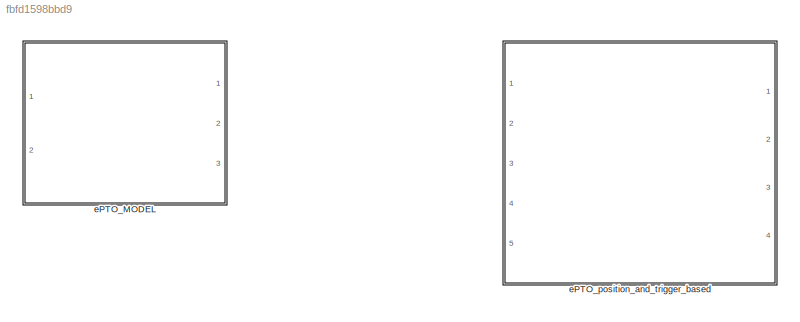
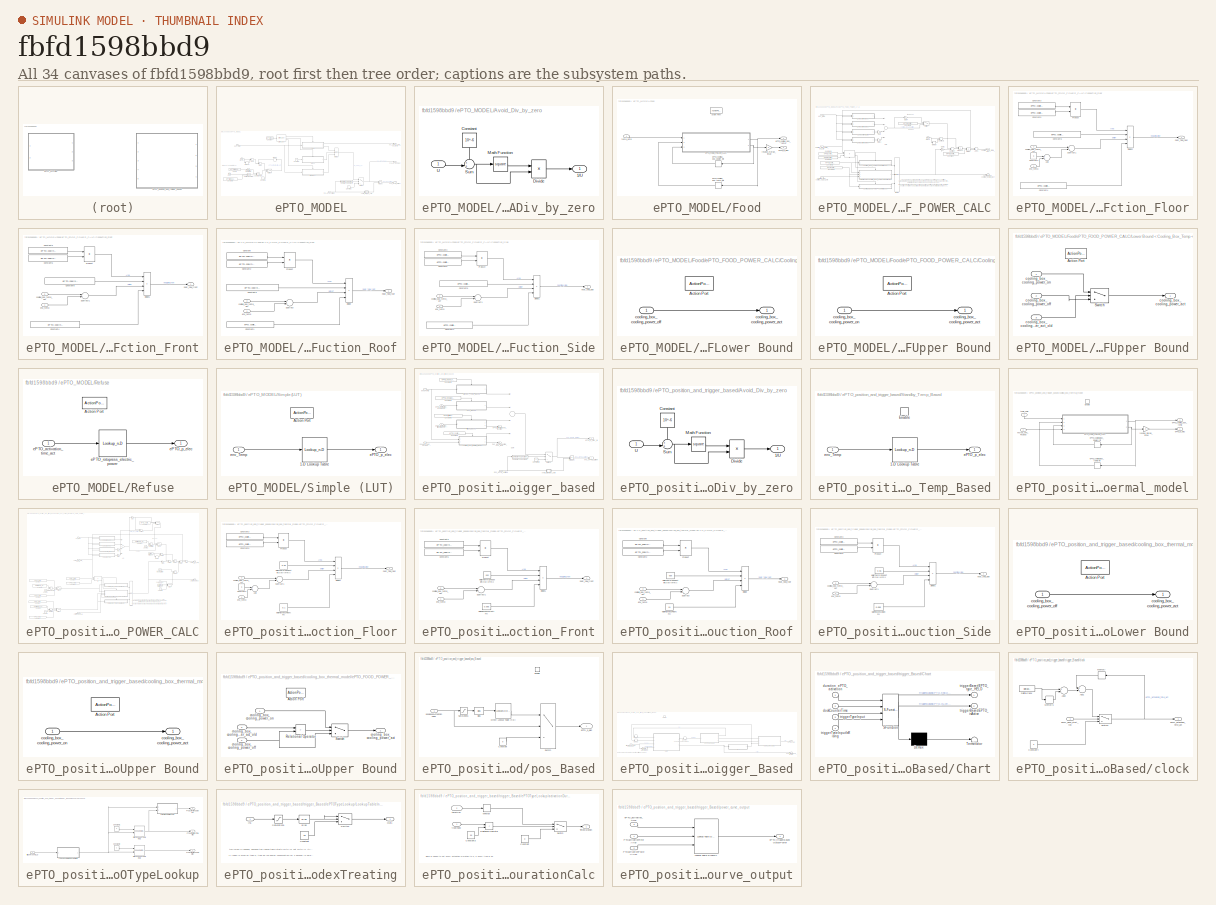
[diagram: thumbnail index - all 34 canvases of the model, root first then tree order]
MODEL slx_fbfd1598bbd9
KIND library
CONFIG AbsTol = auto
CONFIG FixedStep = auto
CONFIG MaxStep = auto
CONFIG MinStep = auto
CONFIG RelTol = 1e-3
CONFIG SampleTimeConstraint = Unconstrained
CONFIG Solver = ode45
CONFIG SolverMode = Auto
CONFIG SolverName = ode45
CONFIG StartTime = 0.0
CONFIG StopTime = 10.0
BLOCK [SubSystem] ePTO_MODEL
  Ports = [2, 3]
  RequestExecContextInheritance = off
  Variant = off
BLOCK [Sum] ePTO_MODEL/Add1
  Commented = on
  InputSameDT = off
  OutDataTypeStr = Inherit: Inherit via internal rule
  Ports = [2, 1]
  SaturateOnIntegerOverflow = off
BLOCK [Sum] ePTO_MODEL/Add2
  Commented = on
  InputSameDT = off
  Inputs = +-
  OutDataTypeStr = Inherit: Inherit via internal rule
  Ports = [2, 1]
  SaturateOnIntegerOverflow = off
BLOCK [SubSystem] ePTO_MODEL/Avoid_Div_by_zero
  Ports = [1, 1]
  RequestExecContextInheritance = off
  Variant = off
BLOCK [Outport] ePTO_MODEL/Avoid_Div_by_zero/1//U
  IconDisplay = Port number
BLOCK [Constant] ePTO_MODEL/Avoid_Div_by_zero/Constant
  Value = 10^-6
BLOCK [Product] ePTO_MODEL/Avoid_Div_by_zero/Divide
  InputSameDT = off
  Inputs = /*
  OutDataTypeStr = Inherit: Inherit via internal rule
  Ports = [2, 1]
  RndMeth = Floor
  SaturateOnIntegerOverflow = off
BLOCK [Math] ePTO_MODEL/Avoid_Div_by_zero/Math Function
  Operator = square
  Ports = [1, 1]
BLOCK [Sum] ePTO_MODEL/Avoid_Div_by_zero/Sum
  IconShape = round
  InputSameDT = off
  Inputs = ++|
  OutDataTypeStr = Inherit: Inherit via internal rule
  Ports = [2, 1]
  SaturateOnIntegerOverflow = off
BLOCK [Inport] ePTO_MODEL/Avoid_Div_by_zero/U
  IconDisplay = Port number
BLOCK [Clock] ePTO_MODEL/Clock
  Commented = on
BLOCK [Clock] ePTO_MODEL/Clock1
  Commented = on
BLOCK [Reference] ePTO_MODEL/Compare To Constant1  REF=simulink/Logic and Bit
Operations/Compare
To Constant
  Ports = [1, 1]
  SourceBlock = simulink/Logic and Bit\nOperations/Compare\nTo Constant
  SourceType = Compare To Constant
BLOCK [Reference] ePTO_MODEL/Compare To Constant2  REF=simulink/Logic and Bit
Operations/Compare
To Constant
  Commented = on
  Ports = [1, 1]
  SourceBlock = simulink/Logic and Bit\nOperations/Compare\nTo Constant
  SourceType = Compare To Constant
BLOCK [Constant] ePTO_MODEL/Constant
  Value = ePTO.type
BLOCK [Constant] ePTO_MODEL/Constant1
  Value = 0
BLOCK [Constant] ePTO_MODEL/Constant2
  Value = 0
BLOCK [Constant] ePTO_MODEL/Constant3
  Commented = on
  Value = ePTO.refuse.activation_delay
BLOCK [Constant] ePTO_MODEL/Constant4
  Commented = on
  Value = 0
BLOCK [SubSystem] ePTO_MODEL/Food
  Ports = [1, 2, 0, 0, 0, 0, 0, 1]
  RequestExecContextInheritance = off
  TreatAsAtomicUnit = on
  Variant = off
BLOCK [ActionPort] ePTO_MODEL/Food/Action Port
  ActionType = case
BLOCK [Memory] ePTO_MODEL/Food/ePTO.cooling_box.power_init
BLOCK [Memory] ePTO_MODEL/Food/ePTO.cooling_box.temp_init
  X0 = ePTO.cooling_box.temp_init
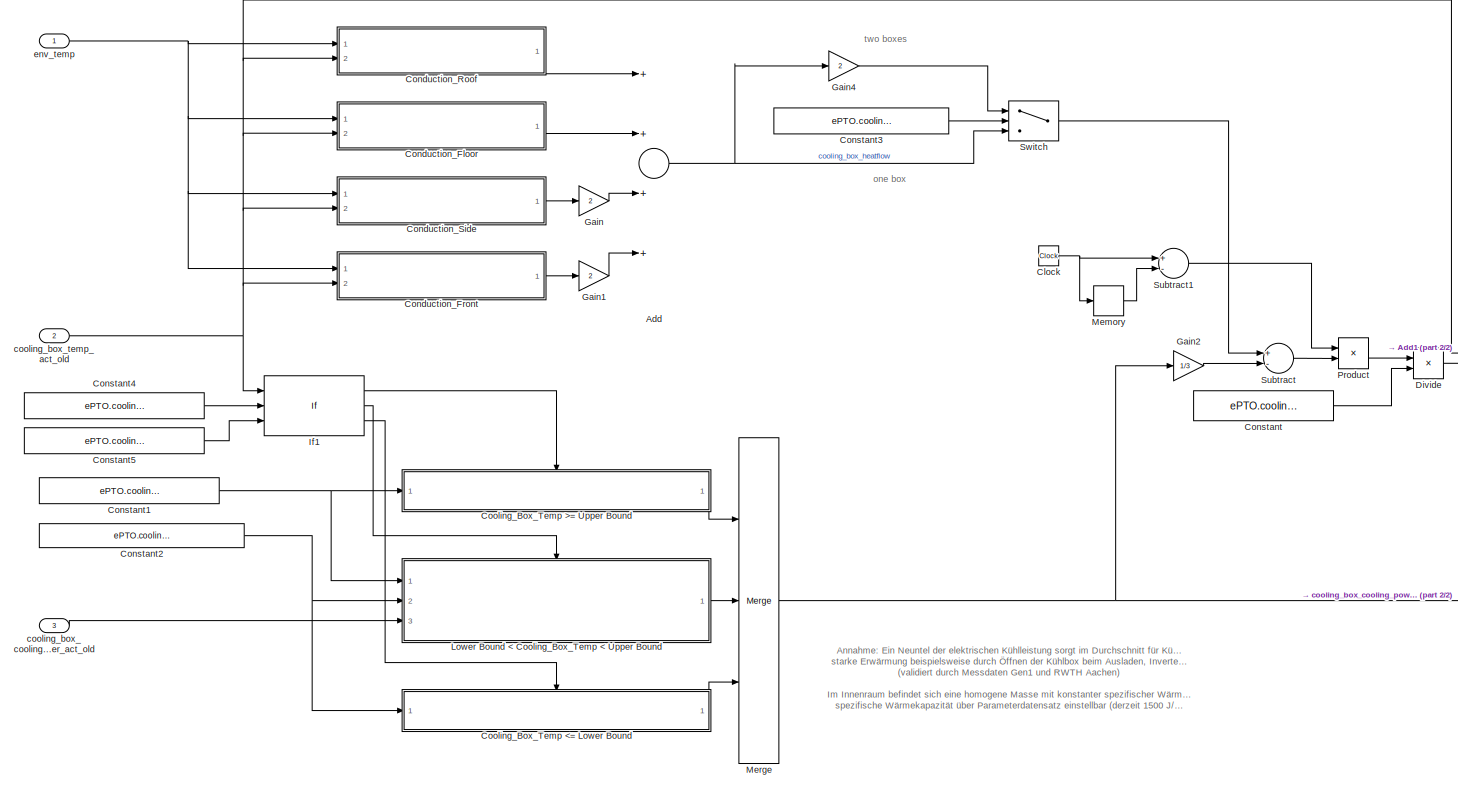
[diagram: ePTO_MODEL/Food/ePTO_FOOD_POWER_CALC - part 1/2, most of the canvas]
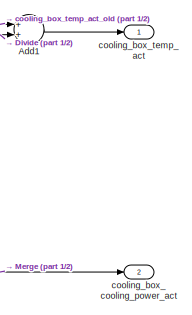
[diagram: ePTO_MODEL/Food/ePTO_FOOD_POWER_CALC - part 2/2, middle right region]
BLOCK [SubSystem] ePTO_MODEL/Food/ePTO_FOOD_POWER_CALC
  Ports = [3, 2]
  RequestExecContextInheritance = off
  Variant = off
BLOCK [Sum] ePTO_MODEL/Food/ePTO_FOOD_POWER_CALC/Add
  InputSameDT = off
  Inputs = ++++
  OutDataTypeStr = Inherit: Inherit via internal rule
  Ports = [4, 1]
  SaturateOnIntegerOverflow = off
BLOCK [Sum] ePTO_MODEL/Food/ePTO_FOOD_POWER_CALC/Add1
  InputSameDT = off
  OutDataTypeStr = Inherit: Inherit via internal rule
  Ports = [2, 1]
  SaturateOnIntegerOverflow = off
BLOCK [Clock] ePTO_MODEL/Food/ePTO_FOOD_POWER_CALC/Clock
BLOCK [SubSystem] ePTO_MODEL/Food/ePTO_FOOD_POWER_CALC/Conduction_Floor
  Ports = [2, 1]
  RequestExecContextInheritance = off
  Variant = off
BLOCK [Sum] ePTO_MODEL/Food/ePTO_FOOD_POWER_CALC/Conduction_Floor/Add
  InputSameDT = off
  OutDataTypeStr = Inherit: Inherit via internal rule
  Ports = [2, 1]
  SaturateOnIntegerOverflow = off
BLOCK [Constant] ePTO_MODEL/Food/ePTO_FOOD_POWER_CALC/Conduction_Floor/Constant2
  Value = 5
BLOCK [Constant] ePTO_MODEL/Food/ePTO_FOOD_POWER_CALC/Conduction_Floor/Constant3
  Value = ePTO.cooling_box.length
BLOCK [Constant] ePTO_MODEL/Food/ePTO_FOOD_POWER_CALC/Conduction_Floor/Constant4
  Value = ePTO.cooling_box.wall_thickness_floor
BLOCK [Constant] ePTO_MODEL/Food/ePTO_FOOD_POWER_CALC/Conduction_Floor/Constant5
  Value = ePTO.cooling_box.width
BLOCK [Constant] ePTO_MODEL/Food/ePTO_FOOD_POWER_CALC/Conduction_Floor/Constant6
  Value = ePTO.cooling_box.walls_thermal_conductivity
BLOCK [Product] ePTO_MODEL/Food/ePTO_FOOD_POWER_CALC/Conduction_Floor/Divide1
  InputSameDT = off
  Inputs = ***/
  OutDataTypeStr = Inherit: Inherit via internal rule
  Ports = [4, 1]
  RndMeth = Floor
  SaturateOnIntegerOverflow = off
BLOCK [Product] ePTO_MODEL/Food/ePTO_FOOD_POWER_CALC/Conduction_Floor/Product
  InputSameDT = off
  OutDataTypeStr = Inherit: Inherit via internal rule
  Ports = [2, 1]
  RndMeth = Floor
  SaturateOnIntegerOverflow = off
BLOCK [Sum] ePTO_MODEL/Food/ePTO_FOOD_POWER_CALC/Conduction_Floor/Subtract1
  InputSameDT = off
  Inputs = -+
  OutDataTypeStr = Inherit: Inherit via internal rule
  Ports = [2, 1]
  SaturateOnIntegerOverflow = off
BLOCK [Inport] ePTO_MODEL/Food/ePTO_FOOD_POWER_CALC/Conduction_Floor/cooling_box_temp_act
  IconDisplay = Port number
  Port = 2
BLOCK [Inport] ePTO_MODEL/Food/ePTO_FOOD_POWER_CALC/Conduction_Floor/env_temp
  IconDisplay = Port number
BLOCK [Outport] ePTO_MODEL/Food/ePTO_FOOD_POWER_CALC/Conduction_Floor/heat_flow_floor
  IconDisplay = Port number
BLOCK [SubSystem] ePTO_MODEL/Food/ePTO_FOOD_POWER_CALC/Conduction_Front
  Ports = [2, 1]
  RequestExecContextInheritance = off
  Variant = off
BLOCK [Constant] ePTO_MODEL/Food/ePTO_FOOD_POWER_CALC/Conduction_Front/Constant3
  Value = ePTO.cooling_box.width
BLOCK [Constant] ePTO_MODEL/Food/ePTO_FOOD_POWER_CALC/Conduction_Front/Constant4
  Value = ePTO.cooling_box.wall_thickness_front
BLOCK [Constant] ePTO_MODEL/Food/ePTO_FOOD_POWER_CALC/Conduction_Front/Constant5
  Value = ePTO.cooling_box.height
BLOCK [Constant] ePTO_MODEL/Food/ePTO_FOOD_POWER_CALC/Conduction_Front/Constant6
  Value = ePTO.cooling_box.walls_thermal_conductivity
BLOCK [Product] ePTO_MODEL/Food/ePTO_FOOD_POWER_CALC/Conduction_Front/Divide1
  InputSameDT = off
  Inputs = ***/
  OutDataTypeStr = Inherit: Inherit via internal rule
  Ports = [4, 1]
  RndMeth = Floor
  SaturateOnIntegerOverflow = off
BLOCK [Product] ePTO_MODEL/Food/ePTO_FOOD_POWER_CALC/Conduction_Front/Product
  InputSameDT = off
  OutDataTypeStr = Inherit: Inherit via internal rule
  Ports = [2, 1]
  RndMeth = Floor
  SaturateOnIntegerOverflow = off
BLOCK [Sum] ePTO_MODEL/Food/ePTO_FOOD_POWER_CALC/Conduction_Front/Subtract1
  InputSameDT = off
  Inputs = -+
  OutDataTypeStr = Inherit: Inherit via internal rule
  Ports = [2, 1]
  SaturateOnIntegerOverflow = off
BLOCK [Inport] ePTO_MODEL/Food/ePTO_FOOD_POWER_CALC/Conduction_Front/cooling_box_temp_act
  IconDisplay = Port number
  Port = 2
BLOCK [Inport] ePTO_MODEL/Food/ePTO_FOOD_POWER_CALC/Conduction_Front/env_temp
  IconDisplay = Port number
BLOCK [Outport] ePTO_MODEL/Food/ePTO_FOOD_POWER_CALC/Conduction_Front/heat_flow_front
  IconDisplay = Port number
BLOCK [SubSystem] ePTO_MODEL/Food/ePTO_FOOD_POWER_CALC/Conduction_Roof
  Ports = [2, 1]
  RequestExecContextInheritance = off
  Variant = off
BLOCK [Constant] ePTO_MODEL/Food/ePTO_FOOD_POWER_CALC/Conduction_Roof/Constant
  Value = ePTO.cooling_box.length
BLOCK [Constant] ePTO_MODEL/Food/ePTO_FOOD_POWER_CALC/Conduction_Roof/Constant1
  Value = ePTO.cooling_box.wall_thickness_roof
BLOCK [Constant] ePTO_MODEL/Food/ePTO_FOOD_POWER_CALC/Conduction_Roof/Constant2
  Value = ePTO.cooling_box.width
BLOCK [Constant] ePTO_MODEL/Food/ePTO_FOOD_POWER_CALC/Conduction_Roof/Constant3
  Value = ePTO.cooling_box.walls_thermal_conductivity
BLOCK [Product] ePTO_MODEL/Food/ePTO_FOOD_POWER_CALC/Conduction_Roof/Divide
  InputSameDT = off
  Inputs = ***/
  OutDataTypeStr = Inherit: Inherit via internal rule
  Ports = [4, 1]
  RndMeth = Floor
  SaturateOnIntegerOverflow = off
BLOCK [Product] ePTO_MODEL/Food/ePTO_FOOD_POWER_CALC/Conduction_Roof/Product
  InputSameDT = off
  OutDataTypeStr = Inherit: Inherit via internal rule
  Ports = [2, 1]
  RndMeth = Floor
  SaturateOnIntegerOverflow = off
BLOCK [Sum] ePTO_MODEL/Food/ePTO_FOOD_POWER_CALC/Conduction_Roof/Subtract
  InputSameDT = off
  Inputs = -+
  OutDataTypeStr = Inherit: Inherit via internal rule
  Ports = [2, 1]
  SaturateOnIntegerOverflow = off
BLOCK [Inport] ePTO_MODEL/Food/ePTO_FOOD_POWER_CALC/Conduction_Roof/cooling_box_temp_act
  IconDisplay = Port number
  Port = 2
BLOCK [Inport] ePTO_MODEL/Food/ePTO_FOOD_POWER_CALC/Conduction_Roof/env_temp
  IconDisplay = Port number
BLOCK [Outport] ePTO_MODEL/Food/ePTO_FOOD_POWER_CALC/Conduction_Roof/heat_flow_roof
  IconDisplay = Port number
BLOCK [SubSystem] ePTO_MODEL/Food/ePTO_FOOD_POWER_CALC/Conduction_Side
  Ports = [2, 1]
  RequestExecContextInheritance = off
  Variant = off
BLOCK [Constant] ePTO_MODEL/Food/ePTO_FOOD_POWER_CALC/Conduction_Side/Constant3
  Value = ePTO.cooling_box.length
BLOCK [Constant] ePTO_MODEL/Food/ePTO_FOOD_POWER_CALC/Conduction_Side/Constant4
  Value = ePTO.cooling_box.wall_thickness_side
BLOCK [Constant] ePTO_MODEL/Food/ePTO_FOOD_POWER_CALC/Conduction_Side/Constant5
  Value = ePTO.cooling_box.height
BLOCK [Constant] ePTO_MODEL/Food/ePTO_FOOD_POWER_CALC/Conduction_Side/Constant6
  Value = ePTO.cooling_box.walls_thermal_conductivity
BLOCK [Product] ePTO_MODEL/Food/ePTO_FOOD_POWER_CALC/Conduction_Side/Divide1
  InputSameDT = off
  Inputs = ***/
  OutDataTypeStr = Inherit: Inherit via internal rule
  Ports = [4, 1]
  RndMeth = Floor
  SaturateOnIntegerOverflow = off
BLOCK [Product] ePTO_MODEL/Food/ePTO_FOOD_POWER_CALC/Conduction_Side/Product
  InputSameDT = off
  OutDataTypeStr = Inherit: Inherit via internal rule
  Ports = [2, 1]
  RndMeth = Floor
  SaturateOnIntegerOverflow = off
BLOCK [Sum] ePTO_MODEL/Food/ePTO_FOOD_POWER_CALC/Conduction_Side/Subtract1
  InputSameDT = off
  Inputs = -+
  OutDataTypeStr = Inherit: Inherit via internal rule
  Ports = [2, 1]
  SaturateOnIntegerOverflow = off
BLOCK [Inport] ePTO_MODEL/Food/ePTO_FOOD_POWER_CALC/Conduction_Side/cooling_box_temp_act
  IconDisplay = Port number
  Port = 2
BLOCK [Inport] ePTO_MODEL/Food/ePTO_FOOD_POWER_CALC/Conduction_Side/env_temp
  IconDisplay = Port number
BLOCK [Outport] ePTO_MODEL/Food/ePTO_FOOD_POWER_CALC/Conduction_Side/heat_flow_side
  IconDisplay = Port number
BLOCK [Constant] ePTO_MODEL/Food/ePTO_FOOD_POWER_CALC/Constant
  Value = ePTO.cooling_box.food_c_w
BLOCK [Constant] ePTO_MODEL/Food/ePTO_FOOD_POWER_CALC/Constant1
  Value = ePTO.cooling_box.cooling_power_on
BLOCK [Constant] ePTO_MODEL/Food/ePTO_FOOD_POWER_CALC/Constant2
  Value = ePTO.cooling_box.cooling_power_standby
BLOCK [Constant] ePTO_MODEL/Food/ePTO_FOOD_POWER_CALC/Constant3
  Value = ePTO.cooling_box.trailer_available
BLOCK [Constant] ePTO_MODEL/Food/ePTO_FOOD_POWER_CALC/Constant4
  Value = ePTO.cooling_box.upper_temp
BLOCK [Constant] ePTO_MODEL/Food/ePTO_FOOD_POWER_CALC/Constant5
  Value = ePTO.cooling_box.lower_temp
BLOCK [SubSystem] ePTO_MODEL/Food/ePTO_FOOD_POWER_CALC/Cooling_Box_Temp <= Lower Bound
  Ports = [1, 1, 0, 0, 0, 0, 0, 1]
  RequestExecContextInheritance = off
  TreatAsAtomicUnit = on
  Variant = off
BLOCK [ActionPort] ePTO_MODEL/Food/ePTO_FOOD_POWER_CALC/Cooling_Box_Temp <= Lower Bound/Action Port
BLOCK [Outport] ePTO_MODEL/Food/ePTO_FOOD_POWER_CALC/Cooling_Box_Temp <= Lower Bound/cooling_box_cooling_power_act
  IconDisplay = Port number
BLOCK [Inport] ePTO_MODEL/Food/ePTO_FOOD_POWER_CALC/Cooling_Box_Temp <= Lower Bound/cooling_box_cooling_power_off
  IconDisplay = Port number
BLOCK [SubSystem] ePTO_MODEL/Food/ePTO_FOOD_POWER_CALC/Cooling_Box_Temp >= Upper Bound
  Ports = [1, 1, 0, 0, 0, 0, 0, 1]
  RequestExecContextInheritance = off
  TreatAsAtomicUnit = on
  Variant = off
BLOCK [ActionPort] ePTO_MODEL/Food/ePTO_FOOD_POWER_CALC/Cooling_Box_Temp >= Upper Bound/Action Port
BLOCK [Outport] ePTO_MODEL/Food/ePTO_FOOD_POWER_CALC/Cooling_Box_Temp >= Upper Bound/cooling_box_cooling_power_act
  IconDisplay = Port number
BLOCK [Inport] ePTO_MODEL/Food/ePTO_FOOD_POWER_CALC/Cooling_Box_Temp >= Upper Bound/cooling_box_cooling_power_on
  IconDisplay = Port number
BLOCK [Product] ePTO_MODEL/Food/ePTO_FOOD_POWER_CALC/Divide
  InputSameDT = off
  Inputs = */
  OutDataTypeStr = Inherit: Inherit via internal rule
  Ports = [2, 1]
  RndMeth = Floor
  SaturateOnIntegerOverflow = off
BLOCK [Gain] ePTO_MODEL/Food/ePTO_FOOD_POWER_CALC/Gain
  Gain = 2
  OutDataTypeStr = Inherit: Inherit via internal rule
  ParamDataTypeStr = Inherit: Inherit via internal rule
  SaturateOnIntegerOverflow = off
BLOCK [Gain] ePTO_MODEL/Food/ePTO_FOOD_POWER_CALC/Gain1
  Gain = 2
  OutDataTypeStr = Inherit: Inherit via internal rule
  ParamDataTypeStr = Inherit: Inherit via internal rule
  SaturateOnIntegerOverflow = off
BLOCK [Gain] ePTO_MODEL/Food/ePTO_FOOD_POWER_CALC/Gain2
  Gain = 1/3
  OutDataTypeStr = Inherit: Inherit via internal rule
  ParamDataTypeStr = Inherit: Inherit via internal rule
  SaturateOnIntegerOverflow = off
BLOCK [Gain] ePTO_MODEL/Food/ePTO_FOOD_POWER_CALC/Gain4
  Gain = 2
  OutDataTypeStr = Inherit: Inherit via internal rule
  ParamDataTypeStr = Inherit: Inherit via internal rule
  SaturateOnIntegerOverflow = off
BLOCK [If] ePTO_MODEL/Food/ePTO_FOOD_POWER_CALC/If1
  ElseIfExpressions = u1 >= u3
  IfExpression = u1 >= u2
  NumInputs = 3
  Ports = [3, 3]
BLOCK [SubSystem] ePTO_MODEL/Food/ePTO_FOOD_POWER_CALC/Lower Bound < Cooling_Box_Temp < Upper Bound
  Ports = [3, 1, 0, 0, 0, 0, 0, 1]
  RequestExecContextInheritance = off
  TreatAsAtomicUnit = on
  Variant = off
BLOCK [ActionPort] ePTO_MODEL/Food/ePTO_FOOD_POWER_CALC/Lower Bound < Cooling_Box_Temp < Upper Bound/Action Port
BLOCK [Switch] ePTO_MODEL/Food/ePTO_FOOD_POWER_CALC/Lower Bound < Cooling_Box_Temp < Upper Bound/Switch
  Criteria = u2 > Threshold
  InputSameDT = off
  SaturateOnIntegerOverflow = off
  Threshold = ePTO.cooling_box.cooling_power_standby
BLOCK [Outport] ePTO_MODEL/Food/ePTO_FOOD_POWER_CALC/Lower Bound < Cooling_Box_Temp < Upper Bound/cooling_box_cooling_power_act
  IconDisplay = Port number
BLOCK [Inport] ePTO_MODEL/Food/ePTO_FOOD_POWER_CALC/Lower Bound < Cooling_Box_Temp < Upper Bound/cooling_box_cooling_power_act_old
  IconDisplay = Port number
  Port = 3
BLOCK [Inport] ePTO_MODEL/Food/ePTO_FOOD_POWER_CALC/Lower Bound < Cooling_Box_Temp < Upper Bound/cooling_box_cooling_power_off
  IconDisplay = Port number
  Port = 2
BLOCK [Inport] ePTO_MODEL/Food/ePTO_FOOD_POWER_CALC/Lower Bound < Cooling_Box_Temp < Upper Bound/cooling_box_cooling_power_on
  IconDisplay = Port number
BLOCK [Memory] ePTO_MODEL/Food/ePTO_FOOD_POWER_CALC/Memory
BLOCK [Merge] ePTO_MODEL/Food/ePTO_FOOD_POWER_CALC/Merge
  Inputs = 3
  Ports = [3, 1]
BLOCK [Product] ePTO_MODEL/Food/ePTO_FOOD_POWER_CALC/Product
  InputSameDT = off
  OutDataTypeStr = Inherit: Inherit via internal rule
  Ports = [2, 1]
  RndMeth = Floor
  SaturateOnIntegerOverflow = off
BLOCK [Sum] ePTO_MODEL/Food/ePTO_FOOD_POWER_CALC/Subtract
  InputSameDT = off
  Inputs = +-
  OutDataTypeStr = Inherit: Inherit via internal rule
  Ports = [2, 1]
  SaturateOnIntegerOverflow = off
BLOCK [Sum] ePTO_MODEL/Food/ePTO_FOOD_POWER_CALC/Subtract1
  InputSameDT = off
  Inputs = +-
  OutDataTypeStr = Inherit: Inherit via internal rule
  Ports = [2, 1]
  SaturateOnIntegerOverflow = off
BLOCK [Switch] ePTO_MODEL/Food/ePTO_FOOD_POWER_CALC/Switch
  Criteria = u2 > Threshold
  InputSameDT = off
  SaturateOnIntegerOverflow = off
  Threshold = 0.5
BLOCK [Outport] ePTO_MODEL/Food/ePTO_FOOD_POWER_CALC/cooling_box_cooling_power_act
  IconDisplay = Port number
  Port = 2
BLOCK [Inport] ePTO_MODEL/Food/ePTO_FOOD_POWER_CALC/cooling_box_cooling_power_act_old
  IconDisplay = Port number
  Port = 3
BLOCK [Outport] ePTO_MODEL/Food/ePTO_FOOD_POWER_CALC/cooling_box_temp_act
  IconDisplay = Port number
BLOCK [Inport] ePTO_MODEL/Food/ePTO_FOOD_POWER_CALC/cooling_box_temp_act_old
  IconDisplay = Port number
  Port = 2
BLOCK [Inport] ePTO_MODEL/Food/ePTO_FOOD_POWER_CALC/env_temp
  IconDisplay = Port number
BLOCK [Outport] ePTO_MODEL/Food/ePTO_cooling_box_temp
  IconDisplay = Port number
BLOCK [Outport] ePTO_MODEL/Food/ePTO_p_elec
  IconDisplay = Port number
  Port = 2
BLOCK [Gain] ePTO_MODEL/Food/resolve_merge_issue
  OutDataTypeStr = Inherit: Inherit via internal rule
  ParamDataTypeStr = Inherit: Inherit via internal rule
  SaturateOnIntegerOverflow = off
BLOCK [Inport] ePTO_MODEL/Food/temp_amb
  IconDisplay = Port number
BLOCK [Logic] ePTO_MODEL/Logical Operator
  AllPortsSameDT = off
  Commented = on
  OutDataTypeStr = boolean
  Ports = [2, 1]
BLOCK [Memory] ePTO_MODEL/Memory
  Commented = on
BLOCK [Memory] ePTO_MODEL/Memory1
  Commented = on
BLOCK [Merge] ePTO_MODEL/Merge1
  Inputs = 3
  Ports = [3, 1]
BLOCK [Product] ePTO_MODEL/Product
  InputSameDT = off
  OutDataTypeStr = Inherit: Inherit via internal rule
  Ports = [2, 1]
  RndMeth = Floor
  SaturateOnIntegerOverflow = off
BLOCK [SubSystem] ePTO_MODEL/Refuse
  Ports = [1, 1, 0, 0, 0, 0, 0, 1]
  RequestExecContextInheritance = off
  TreatAsAtomicUnit = on
  Variant = off
BLOCK [ActionPort] ePTO_MODEL/Refuse/Action Port
  ActionType = case
BLOCK [Inport] ePTO_MODEL/Refuse/ePTO_activation_time_act
  IconDisplay = Port number
BLOCK [Outport] ePTO_MODEL/Refuse/ePTO_p_elec
  IconDisplay = Port number
BLOCK [Lookup_n-D] ePTO_MODEL/Refuse/ePTO_rotopress_electric_power
  BreakpointsForDimension1 = ePTO.garbage.time
  ExtrapMethod = Clip
  NumberOfTableDimensions = 1
  Ports = [1, 1]
  RndMeth = Simplest
  Table = ePTO.garbage.electric_power
  UseLastTableValue = on
BLOCK [RelationalOperator] ePTO_MODEL/Relational Operator
  Commented = on
  InputSameDT = off
  OutDataTypeStr = boolean
  Ports = [2, 1]
BLOCK [SubSystem] ePTO_MODEL/Simple (LUT)
  Ports = [1, 1, 0, 0, 0, 0, 0, 1]
  RequestExecContextInheritance = off
  TreatAsAtomicUnit = on
  Variant = off
BLOCK [Lookup_n-D] ePTO_MODEL/Simple (LUT)/1-D Lookup Table
  BreakpointsForDimension1 = ePTO.simple.lutIdx_tamb
  ExtrapMethod = Clip
  InternalRulePriority = Speed
  NumberOfTableDimensions = 1
  Ports = [1, 1]
  RndMeth = Simplest
  Table = ePTO.simple.lutData_power
BLOCK [ActionPort] ePTO_MODEL/Simple (LUT)/Action Port
  ActionType = default
BLOCK [Outport] ePTO_MODEL/Simple (LUT)/ePTO_p_elec
  IconDisplay = Port number
BLOCK [Inport] ePTO_MODEL/Simple (LUT)/env_Temp
  IconDisplay = Port number
BLOCK [SwitchCase] ePTO_MODEL/Switch Case
  CaseConditions = {1,2}
  Ports = [1, 3]
BLOCK [Switch] ePTO_MODEL/Switch1
  Commented = on
  Criteria = u2 > Threshold
  InputSameDT = off
  SaturateOnIntegerOverflow = off
BLOCK [Switch] ePTO_MODEL/Switch2
  Criteria = u2 > Threshold
  InputSameDT = off
  SaturateOnIntegerOverflow = off
BLOCK [Constant] ePTO_MODEL/enable
  Commented = on
  Value = ePTO.refuse.enable
BLOCK [Inport] ePTO_MODEL/env_Temp
  IconDisplay = Port number
BLOCK [Outport] ePTO_MODEL/hvs_ePTO_Current
  IconDisplay = Port number
BLOCK [Outport] ePTO_MODEL/hvs_ePTO_Power
  IconDisplay = Port number
  Port = 2
BLOCK [Inport] ePTO_MODEL/hvs_ePTO_Voltage
  IconDisplay = Port number
  Port = 2
BLOCK [Outport] ePTO_MODEL/hvs_ePTO_cooling_box_temp
  IconDisplay = Port number
  Port = 3
BLOCK [SubSystem] ePTO_position_and_trigger_based
  Ports = [5, 4]
  RequestExecContextInheritance = off
  Variant = off
BLOCK [SubSystem] ePTO_position_and_trigger_based/Avoid_Div_by_zero
  Ports = [1, 1]
  RequestExecContextInheritance = off
  Variant = off
BLOCK [Outport] ePTO_position_and_trigger_based/Avoid_Div_by_zero/1//U
  IconDisplay = Port number
BLOCK [Constant] ePTO_position_and_trigger_based/Avoid_Div_by_zero/Constant
  Value = 10^-6
BLOCK [Product] ePTO_position_and_trigger_based/Avoid_Div_by_zero/Divide
  InputSameDT = off
  Inputs = /*
  OutDataTypeStr = Inherit: Inherit via internal rule
  Ports = [2, 1]
  RndMeth = Floor
  SaturateOnIntegerOverflow = off
BLOCK [Math] ePTO_position_and_trigger_based/Avoid_Div_by_zero/Math Function
  Operator = square
  Ports = [1, 1]
BLOCK [Sum] ePTO_position_and_trigger_based/Avoid_Div_by_zero/Sum
  IconShape = round
  InputSameDT = off
  Inputs = ++|
  OutDataTypeStr = Inherit: Inherit via internal rule
  Ports = [2, 1]
  SaturateOnIntegerOverflow = off
BLOCK [Inport] ePTO_position_and_trigger_based/Avoid_Div_by_zero/U
  IconDisplay = Port number
BLOCK [Reference] ePTO_position_and_trigger_based/Compare To Constant1  REF=simulink/Logic and Bit
Operations/Compare
To Constant
  Ports = [1, 1]
  SourceBlock = simulink/Logic and Bit\nOperations/Compare\nTo Constant
  SourceType = Compare To Constant
BLOCK [Constant] ePTO_position_and_trigger_based/Constant1
  Value = ePTO_coolingBox_enable
BLOCK [Constant] ePTO_position_and_trigger_based/Constant2
  Value = 0
BLOCK [Constant] ePTO_position_and_trigger_based/Constant3
  Value = ePTO_baseLoad_enable
BLOCK [Constant] ePTO_position_and_trigger_based/Constant4
  Value = ePTO_posBasedActivatedConsumer_enable
BLOCK [Constant] ePTO_position_and_trigger_based/Constant5
  Value = ePTO_triggerBasedActivatedConsumer_enable
BLOCK [Product] ePTO_position_and_trigger_based/Product
  InputSameDT = off
  OutDataTypeStr = Inherit: Inherit via internal rule
  Ports = [2, 1]
  RndMeth = Floor
  SaturateOnIntegerOverflow = off
BLOCK [SubSystem] ePTO_position_and_trigger_based/Standby_Temp_Based
  Ports = [1, 1, 1]
  RequestExecContextInheritance = off
  Variant = off
BLOCK [Lookup_n-D] ePTO_position_and_trigger_based/Standby_Temp_Based/1-D Lookup Table
  BreakpointsForDimension1 = ePTO_baseLoad_lutIdx_tamb
  ExtrapMethod = Clip
  InternalRulePriority = Speed
  NumberOfTableDimensions = 1
  Ports = [1, 1]
  RndMeth = Simplest
  Table = ePTO_baseLoad_lutData_power
BLOCK [EnablePort] ePTO_position_and_trigger_based/Standby_Temp_Based/Enable
  Ports = []
BLOCK [Outport] ePTO_position_and_trigger_based/Standby_Temp_Based/ePTO_p_elec
  IconDisplay = Port number
BLOCK [Inport] ePTO_position_and_trigger_based/Standby_Temp_Based/env_Temp
  IconDisplay = Port number
BLOCK [Sum] ePTO_position_and_trigger_based/Sum
  InputSameDT = off
  Inputs = ++++
  OutDataTypeStr = Inherit: Inherit via internal rule
  Ports = [4, 1]
  SaturateOnIntegerOverflow = off
BLOCK [Switch] ePTO_position_and_trigger_based/Switch2
  Criteria = u2 > Threshold
  InputSameDT = off
  SaturateOnIntegerOverflow = off
BLOCK [SubSystem] ePTO_position_and_trigger_based/cooling_box_thermal_model
  Ports = [2, 2, 1]
  RequestExecContextInheritance = off
  Variant = off
BLOCK [EnablePort] ePTO_position_and_trigger_based/cooling_box_thermal_model/Enable
  Ports = []
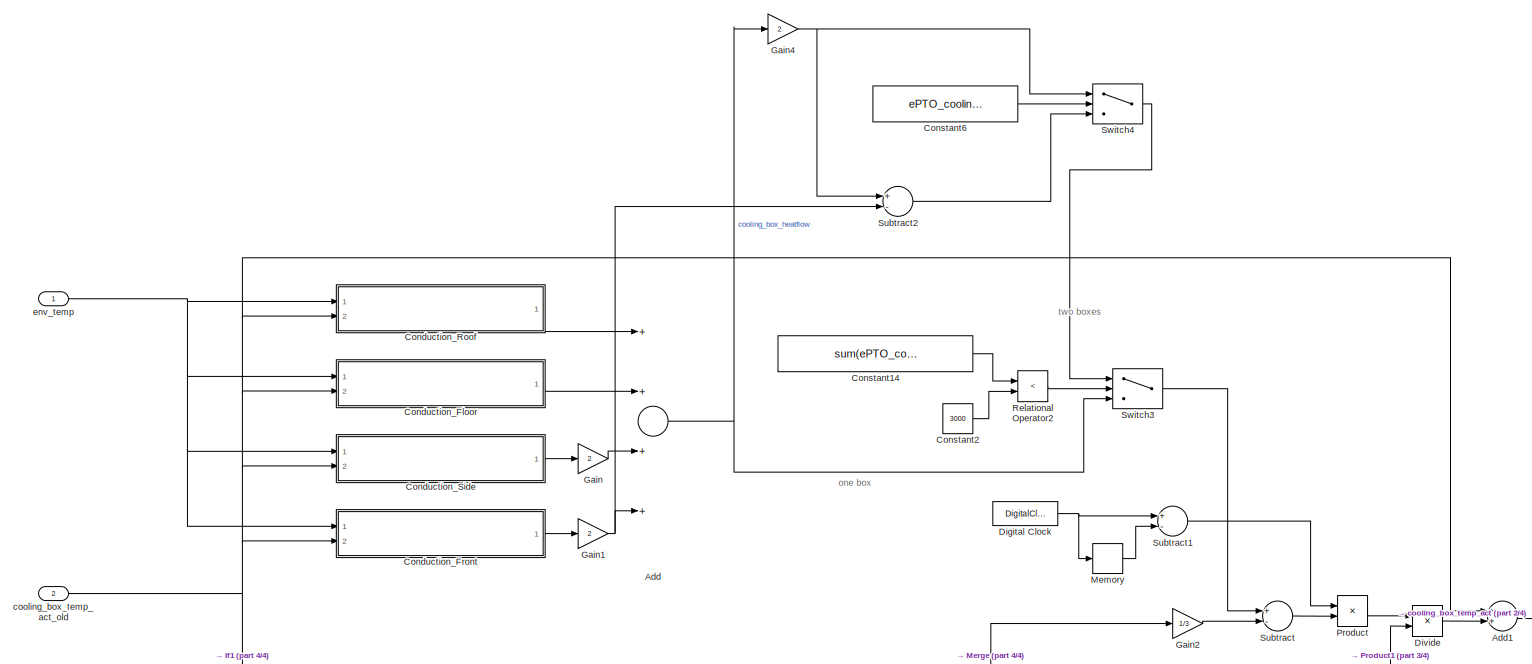
[diagram: ePTO_position_and_trigger_based/cooling_box_thermal_model/ePTO_FOOD_POWER_CALC - part 1/4, top center region]
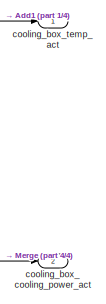
[diagram: ePTO_position_and_trigger_based/cooling_box_thermal_model/ePTO_FOOD_POWER_CALC - part 2/4, middle right region]
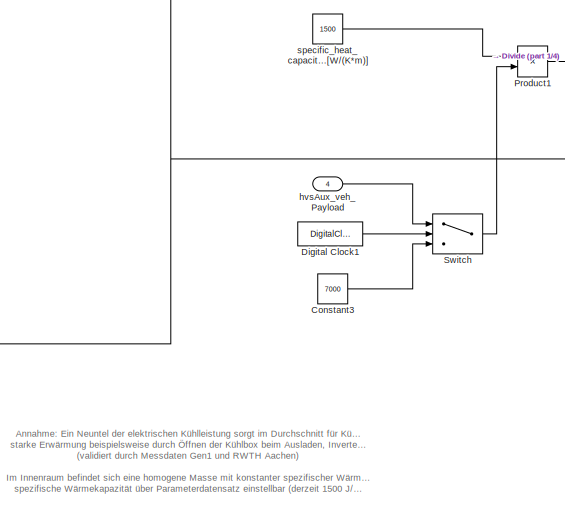
[diagram: ePTO_position_and_trigger_based/cooling_box_thermal_model/ePTO_FOOD_POWER_CALC - part 3/4, bottom right region]
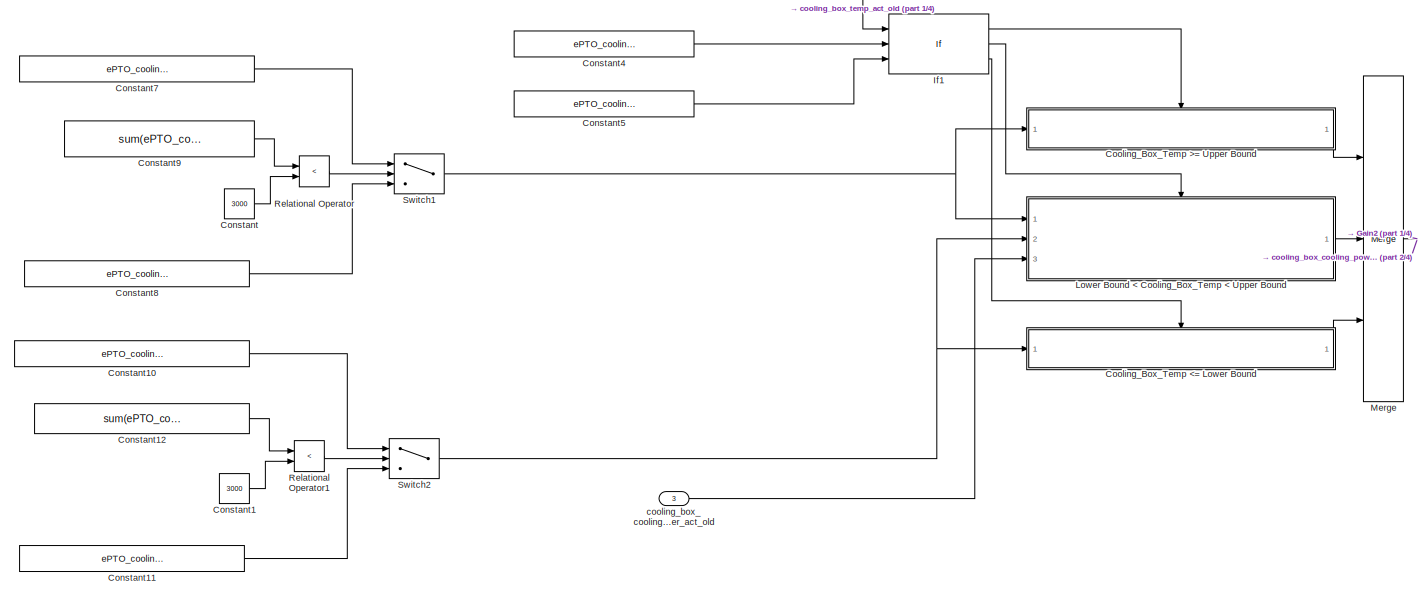
[diagram: ePTO_position_and_trigger_based/cooling_box_thermal_model/ePTO_FOOD_POWER_CALC - part 4/4, bottom left region]
BLOCK [SubSystem] ePTO_position_and_trigger_based/cooling_box_thermal_model/ePTO_FOOD_POWER_CALC
  Ports = [4, 2]
  RequestExecContextInheritance = off
  Variant = off
BLOCK [Sum] ePTO_position_and_trigger_based/cooling_box_thermal_model/ePTO_FOOD_POWER_CALC/Add
  InputSameDT = off
  Inputs = ++++
  OutDataTypeStr = Inherit: Inherit via internal rule
  Ports = [4, 1]
  SaturateOnIntegerOverflow = off
BLOCK [Sum] ePTO_position_and_trigger_based/cooling_box_thermal_model/ePTO_FOOD_POWER_CALC/Add1
  InputSameDT = off
  OutDataTypeStr = Inherit: Inherit via internal rule
  Ports = [2, 1]
  SaturateOnIntegerOverflow = off
BLOCK [SubSystem] ePTO_position_and_trigger_based/cooling_box_thermal_model/ePTO_FOOD_POWER_CALC/Conduction_Floor
  Ports = [2, 1]
  RequestExecContextInheritance = off
  Variant = off
BLOCK [Sum] ePTO_position_and_trigger_based/cooling_box_thermal_model/ePTO_FOOD_POWER_CALC/Conduction_Floor/Add
  InputSameDT = off
  OutDataTypeStr = Inherit: Inherit via internal rule
  Ports = [2, 1]
  SaturateOnIntegerOverflow = off
BLOCK [Constant] ePTO_position_and_trigger_based/cooling_box_thermal_model/ePTO_FOOD_POWER_CALC/Conduction_Floor/Constant2
  Value = 5
BLOCK [Constant] ePTO_position_and_trigger_based/cooling_box_thermal_model/ePTO_FOOD_POWER_CALC/Conduction_Floor/Constant3
  Value = ePTO_coolingBox_length
BLOCK [Constant] ePTO_position_and_trigger_based/cooling_box_thermal_model/ePTO_FOOD_POWER_CALC/Conduction_Floor/Constant5
  Value = ePTO_coolingBox_width
BLOCK [Product] ePTO_position_and_trigger_based/cooling_box_thermal_model/ePTO_FOOD_POWER_CALC/Conduction_Floor/Divide1
  InputSameDT = off
  Inputs = ***/
  OutDataTypeStr = Inherit: Inherit via internal rule
  Ports = [4, 1]
  RndMeth = Floor
  SaturateOnIntegerOverflow = off
BLOCK [Product] ePTO_position_and_trigger_based/cooling_box_thermal_model/ePTO_FOOD_POWER_CALC/Conduction_Floor/Product
  InputSameDT = off
  OutDataTypeStr = Inherit: Inherit via internal rule
  Ports = [2, 1]
  RndMeth = Floor
  SaturateOnIntegerOverflow = off
BLOCK [Sum] ePTO_position_and_trigger_based/cooling_box_thermal_model/ePTO_FOOD_POWER_CALC/Conduction_Floor/Subtract1
  InputSameDT = off
  Inputs = -+
  OutDataTypeStr = Inherit: Inherit via internal rule
  Ports = [2, 1]
  SaturateOnIntegerOverflow = off
BLOCK [Inport] ePTO_position_and_trigger_based/cooling_box_thermal_model/ePTO_FOOD_POWER_CALC/Conduction_Floor/cooling_box_temp_act
  IconDisplay = Port number
  Port = 2
BLOCK [Inport] ePTO_position_and_trigger_based/cooling_box_thermal_model/ePTO_FOOD_POWER_CALC/Conduction_Floor/env_temp
  IconDisplay = Port number
BLOCK [Outport] ePTO_position_and_trigger_based/cooling_box_thermal_model/ePTO_FOOD_POWER_CALC/Conduction_Floor/heat_flow_floor
  IconDisplay = Port number
BLOCK [Constant] ePTO_position_and_trigger_based/cooling_box_thermal_model/ePTO_FOOD_POWER_CALC/Conduction_Floor/wallThicknessFloor[m] 
  Value = 0.1
BLOCK [Constant] ePTO_position_and_trigger_based/cooling_box_thermal_model/ePTO_FOOD_POWER_CALC/Conduction_Floor/wallsThermConductivity[W//(K*m)]
  Value = 0.05
BLOCK [SubSystem] ePTO_position_and_trigger_based/cooling_box_thermal_model/ePTO_FOOD_POWER_CALC/Conduction_Front
  Ports = [2, 1]
  RequestExecContextInheritance = off
  Variant = off
BLOCK [Constant] ePTO_position_and_trigger_based/cooling_box_thermal_model/ePTO_FOOD_POWER_CALC/Conduction_Front/Constant3
  Value = ePTO_coolingBox_width
BLOCK [Constant] ePTO_position_and_trigger_based/cooling_box_thermal_model/ePTO_FOOD_POWER_CALC/Conduction_Front/Constant5
  Value = ePTO_coolingBox_height
BLOCK [Product] ePTO_position_and_trigger_based/cooling_box_thermal_model/ePTO_FOOD_POWER_CALC/Conduction_Front/Divide1
  InputSameDT = off
  Inputs = ***/
  OutDataTypeStr = Inherit: Inherit via internal rule
  Ports = [4, 1]
  RndMeth = Floor
  SaturateOnIntegerOverflow = off
BLOCK [Product] ePTO_position_and_trigger_based/cooling_box_thermal_model/ePTO_FOOD_POWER_CALC/Conduction_Front/Product
  InputSameDT = off
  OutDataTypeStr = Inherit: Inherit via internal rule
  Ports = [2, 1]
  RndMeth = Floor
  SaturateOnIntegerOverflow = off
BLOCK [Sum] ePTO_position_and_trigger_based/cooling_box_thermal_model/ePTO_FOOD_POWER_CALC/Conduction_Front/Subtract1
  InputSameDT = off
  Inputs = -+
  OutDataTypeStr = Inherit: Inherit via internal rule
  Ports = [2, 1]
  SaturateOnIntegerOverflow = off
BLOCK [Inport] ePTO_position_and_trigger_based/cooling_box_thermal_model/ePTO_FOOD_POWER_CALC/Conduction_Front/cooling_box_temp_act
  IconDisplay = Port number
  Port = 2
BLOCK [Inport] ePTO_position_and_trigger_based/cooling_box_thermal_model/ePTO_FOOD_POWER_CALC/Conduction_Front/env_temp
  IconDisplay = Port number
BLOCK [Outport] ePTO_position_and_trigger_based/cooling_box_thermal_model/ePTO_FOOD_POWER_CALC/Conduction_Front/heat_flow_front
  IconDisplay = Port number
BLOCK [Constant] ePTO_position_and_trigger_based/cooling_box_thermal_model/ePTO_FOOD_POWER_CALC/Conduction_Front/wallThicknessFront[m]
  Value = 0.055
BLOCK [Constant] ePTO_position_and_trigger_based/cooling_box_thermal_model/ePTO_FOOD_POWER_CALC/Conduction_Front/wallsThermConductivity[W//(K*m)]
  Value = 0.05
BLOCK [SubSystem] ePTO_position_and_trigger_based/cooling_box_thermal_model/ePTO_FOOD_POWER_CALC/Conduction_Roof
  Ports = [2, 1]
  RequestExecContextInheritance = off
  Variant = off
BLOCK [Constant] ePTO_position_and_trigger_based/cooling_box_thermal_model/ePTO_FOOD_POWER_CALC/Conduction_Roof/Constant
  Value = ePTO_coolingBox_length
BLOCK [Constant] ePTO_position_and_trigger_based/cooling_box_thermal_model/ePTO_FOOD_POWER_CALC/Conduction_Roof/Constant2
  Value = ePTO_coolingBox_width
BLOCK [Product] ePTO_position_and_trigger_based/cooling_box_thermal_model/ePTO_FOOD_POWER_CALC/Conduction_Roof/Divide
  InputSameDT = off
  Inputs = ***/
  OutDataTypeStr = Inherit: Inherit via internal rule
  Ports = [4, 1]
  RndMeth = Floor
  SaturateOnIntegerOverflow = off
BLOCK [Product] ePTO_position_and_trigger_based/cooling_box_thermal_model/ePTO_FOOD_POWER_CALC/Conduction_Roof/Product
  InputSameDT = off
  OutDataTypeStr = Inherit: Inherit via internal rule
  Ports = [2, 1]
  RndMeth = Floor
  SaturateOnIntegerOverflow = off
BLOCK [Sum] ePTO_position_and_trigger_based/cooling_box_thermal_model/ePTO_FOOD_POWER_CALC/Conduction_Roof/Subtract
  InputSameDT = off
  Inputs = -+
  OutDataTypeStr = Inherit: Inherit via internal rule
  Ports = [2, 1]
  SaturateOnIntegerOverflow = off
BLOCK [Inport] ePTO_position_and_trigger_based/cooling_box_thermal_model/ePTO_FOOD_POWER_CALC/Conduction_Roof/cooling_box_temp_act
  IconDisplay = Port number
  Port = 2
BLOCK [Inport] ePTO_position_and_trigger_based/cooling_box_thermal_model/ePTO_FOOD_POWER_CALC/Conduction_Roof/env_temp
  IconDisplay = Port number
BLOCK [Outport] ePTO_position_and_trigger_based/cooling_box_thermal_model/ePTO_FOOD_POWER_CALC/Conduction_Roof/heat_flow_roof
  IconDisplay = Port number
BLOCK [Constant] ePTO_position_and_trigger_based/cooling_box_thermal_model/ePTO_FOOD_POWER_CALC/Conduction_Roof/wallThicknessRoof[m]
  Value = 0.1
BLOCK [Constant] ePTO_position_and_trigger_based/cooling_box_thermal_model/ePTO_FOOD_POWER_CALC/Conduction_Roof/wallsThermConductivity[W//(K*m)]
  Value = 0.05
BLOCK [SubSystem] ePTO_position_and_trigger_based/cooling_box_thermal_model/ePTO_FOOD_POWER_CALC/Conduction_Side
  Ports = [2, 1]
  RequestExecContextInheritance = off
  Variant = off
BLOCK [Constant] ePTO_position_and_trigger_based/cooling_box_thermal_model/ePTO_FOOD_POWER_CALC/Conduction_Side/Constant3
  Value = ePTO_coolingBox_length
BLOCK [Constant] ePTO_position_and_trigger_based/cooling_box_thermal_model/ePTO_FOOD_POWER_CALC/Conduction_Side/Constant5
  Value = ePTO_coolingBox_height
BLOCK [Product] ePTO_position_and_trigger_based/cooling_box_thermal_model/ePTO_FOOD_POWER_CALC/Conduction_Side/Divide1
  InputSameDT = off
  Inputs = ***/
  OutDataTypeStr = Inherit: Inherit via internal rule
  Ports = [4, 1]
  RndMeth = Floor
  SaturateOnIntegerOverflow = off
BLOCK [Product] ePTO_position_and_trigger_based/cooling_box_thermal_model/ePTO_FOOD_POWER_CALC/Conduction_Side/Product
  InputSameDT = off
  OutDataTypeStr = Inherit: Inherit via internal rule
  Ports = [2, 1]
  RndMeth = Floor
  SaturateOnIntegerOverflow = off
BLOCK [Sum] ePTO_position_and_trigger_based/cooling_box_thermal_model/ePTO_FOOD_POWER_CALC/Conduction_Side/Subtract1
  InputSameDT = off
  Inputs = -+
  OutDataTypeStr = Inherit: Inherit via internal rule
  Ports = [2, 1]
  SaturateOnIntegerOverflow = off
BLOCK [Inport] ePTO_position_and_trigger_based/cooling_box_thermal_model/ePTO_FOOD_POWER_CALC/Conduction_Side/cooling_box_temp_act
  IconDisplay = Port number
  Port = 2
BLOCK [Inport] ePTO_position_and_trigger_based/cooling_box_thermal_model/ePTO_FOOD_POWER_CALC/Conduction_Side/env_temp
  IconDisplay = Port number
BLOCK [Outport] ePTO_position_and_trigger_based/cooling_box_thermal_model/ePTO_FOOD_POWER_CALC/Conduction_Side/heat_flow_side
  IconDisplay = Port number
BLOCK [Constant] ePTO_position_and_trigger_based/cooling_box_thermal_model/ePTO_FOOD_POWER_CALC/Conduction_Side/wallThicknessSide[m] 
  Value = 0.055
BLOCK [Constant] ePTO_position_and_trigger_based/cooling_box_thermal_model/ePTO_FOOD_POWER_CALC/Conduction_Side/wallsThermConductivity[W//(K*m)]
  Value = 0.05
BLOCK [Constant] ePTO_position_and_trigger_based/cooling_box_thermal_model/ePTO_FOOD_POWER_CALC/Constant
  Value = 3000
BLOCK [Constant] ePTO_position_and_trigger_based/cooling_box_thermal_model/ePTO_FOOD_POWER_CALC/Constant1
  Value = 3000
BLOCK [Constant] ePTO_position_and_trigger_based/cooling_box_thermal_model/ePTO_FOOD_POWER_CALC/Constant10
  Value = ePTO_coolingBox_coolingPowerStandby*2
BLOCK [Constant] ePTO_position_and_trigger_based/cooling_box_thermal_model/ePTO_FOOD_POWER_CALC/Constant11
  Value = ePTO_coolingBox_coolingPowerStandby
BLOCK [Constant] ePTO_position_and_trigger_based/cooling_box_thermal_model/ePTO_FOOD_POWER_CALC/Constant12
  Value = sum(ePTO_coolingBox_tires_rdynTrailer)
BLOCK [Constant] ePTO_position_and_trigger_based/cooling_box_thermal_model/ePTO_FOOD_POWER_CALC/Constant14
  Value = sum(ePTO_coolingBox_tires_rdynTrailer)
BLOCK [Constant] ePTO_position_and_trigger_based/cooling_box_thermal_model/ePTO_FOOD_POWER_CALC/Constant2
  Value = 3000
BLOCK [Constant] ePTO_position_and_trigger_based/cooling_box_thermal_model/ePTO_FOOD_POWER_CALC/Constant3
  Value = 7000
BLOCK [Constant] ePTO_position_and_trigger_based/cooling_box_thermal_model/ePTO_FOOD_POWER_CALC/Constant4
  Value = ePTO_coolingBox_upperTemp
BLOCK [Constant] ePTO_position_and_trigger_based/cooling_box_thermal_model/ePTO_FOOD_POWER_CALC/Constant5
  Value = ePTO_coolingBox_lowerTemp
BLOCK [Constant] ePTO_position_and_trigger_based/cooling_box_thermal_model/ePTO_FOOD_POWER_CALC/Constant6
  Value = ePTO_coolingBox_isRigid
BLOCK [Constant] ePTO_position_and_trigger_based/cooling_box_thermal_model/ePTO_FOOD_POWER_CALC/Constant7
  Value = ePTO_coolingBox_coolingPowerOn*2
BLOCK [Constant] ePTO_position_and_trigger_based/cooling_box_thermal_model/ePTO_FOOD_POWER_CALC/Constant8
  Value = ePTO_coolingBox_coolingPowerOn
BLOCK [Constant] ePTO_position_and_trigger_based/cooling_box_thermal_model/ePTO_FOOD_POWER_CALC/Constant9
  Value = sum(ePTO_coolingBox_tires_rdynTrailer)
BLOCK [SubSystem] ePTO_position_and_trigger_based/cooling_box_thermal_model/ePTO_FOOD_POWER_CALC/Cooling_Box_Temp <= Lower Bound
  Ports = [1, 1, 0, 0, 0, 0, 0, 1]
  RequestExecContextInheritance = off
  TreatAsAtomicUnit = on
  Variant = off
BLOCK [ActionPort] ePTO_position_and_trigger_based/cooling_box_thermal_model/ePTO_FOOD_POWER_CALC/Cooling_Box_Temp <= Lower Bound/Action Port
BLOCK [Outport] ePTO_position_and_trigger_based/cooling_box_thermal_model/ePTO_FOOD_POWER_CALC/Cooling_Box_Temp <= Lower Bound/cooling_box_cooling_power_act
  IconDisplay = Port number
BLOCK [Inport] ePTO_position_and_trigger_based/cooling_box_thermal_model/ePTO_FOOD_POWER_CALC/Cooling_Box_Temp <= Lower Bound/cooling_box_cooling_power_off
  IconDisplay = Port number
BLOCK [SubSystem] ePTO_position_and_trigger_based/cooling_box_thermal_model/ePTO_FOOD_POWER_CALC/Cooling_Box_Temp >= Upper Bound
  Ports = [1, 1, 0, 0, 0, 0, 0, 1]
  RequestExecContextInheritance = off
  TreatAsAtomicUnit = on
  Variant = off
BLOCK [ActionPort] ePTO_position_and_trigger_based/cooling_box_thermal_model/ePTO_FOOD_POWER_CALC/Cooling_Box_Temp >= Upper Bound/Action Port
BLOCK [Outport] ePTO_position_and_trigger_based/cooling_box_thermal_model/ePTO_FOOD_POWER_CALC/Cooling_Box_Temp >= Upper Bound/cooling_box_cooling_power_act
  IconDisplay = Port number
BLOCK [Inport] ePTO_position_and_trigger_based/cooling_box_thermal_model/ePTO_FOOD_POWER_CALC/Cooling_Box_Temp >= Upper Bound/cooling_box_cooling_power_on
  IconDisplay = Port number
BLOCK [DigitalClock] ePTO_position_and_trigger_based/cooling_box_thermal_model/ePTO_FOOD_POWER_CALC/Digital Clock
  SampleTime = -1
BLOCK [DigitalClock] ePTO_position_and_trigger_based/cooling_box_thermal_model/ePTO_FOOD_POWER_CALC/Digital Clock1
  SampleTime = -1
BLOCK [Product] ePTO_position_and_trigger_based/cooling_box_thermal_model/ePTO_FOOD_POWER_CALC/Divide
  InputSameDT = off
  Inputs = */
  OutDataTypeStr = Inherit: Inherit via internal rule
  Ports = [2, 1]
  RndMeth = Floor
  SaturateOnIntegerOverflow = off
BLOCK [Gain] ePTO_position_and_trigger_based/cooling_box_thermal_model/ePTO_FOOD_POWER_CALC/Gain
  Gain = 2
  OutDataTypeStr = Inherit: Inherit via internal rule
  ParamDataTypeStr = Inherit: Inherit via internal rule
  SaturateOnIntegerOverflow = off
BLOCK [Gain] ePTO_position_and_trigger_based/cooling_box_thermal_model/ePTO_FOOD_POWER_CALC/Gain1
  Gain = 2
  OutDataTypeStr = Inherit: Inherit via internal rule
  ParamDataTypeStr = Inherit: Inherit via internal rule
  SaturateOnIntegerOverflow = off
BLOCK [Gain] ePTO_position_and_trigger_based/cooling_box_thermal_model/ePTO_FOOD_POWER_CALC/Gain2
  Gain = 1/3
  OutDataTypeStr = Inherit: Inherit via internal rule
  ParamDataTypeStr = Inherit: Inherit via internal rule
  SaturateOnIntegerOverflow = off
BLOCK [Gain] ePTO_position_and_trigger_based/cooling_box_thermal_model/ePTO_FOOD_POWER_CALC/Gain4
  Gain = 2
  OutDataTypeStr = Inherit: Inherit via internal rule
  ParamDataTypeStr = Inherit: Inherit via internal rule
  SaturateOnIntegerOverflow = off
BLOCK [If] ePTO_position_and_trigger_based/cooling_box_thermal_model/ePTO_FOOD_POWER_CALC/If1
  ElseIfExpressions = u1 >= u3
  IfExpression = u1 >= u2
  NumInputs = 3
  Ports = [3, 3]
BLOCK [SubSystem] ePTO_position_and_trigger_based/cooling_box_thermal_model/ePTO_FOOD_POWER_CALC/Lower Bound < Cooling_Box_Temp < Upper Bound
  Ports = [3, 1, 0, 0, 0, 0, 0, 1]
  RequestExecContextInheritance = off
  TreatAsAtomicUnit = on
  Variant = off
BLOCK [ActionPort] ePTO_position_and_trigger_based/cooling_box_thermal_model/ePTO_FOOD_POWER_CALC/Lower Bound < Cooling_Box_Temp < Upper Bound/Action Port
BLOCK [RelationalOperator] ePTO_position_and_trigger_based/cooling_box_thermal_model/ePTO_FOOD_POWER_CALC/Lower Bound < Cooling_Box_Temp < Upper Bound/Relational Operator
  InputSameDT = off
  Operator = >
  OutDataTypeStr = boolean
  Ports = [2, 1]
BLOCK [Switch] ePTO_position_and_trigger_based/cooling_box_thermal_model/ePTO_FOOD_POWER_CALC/Lower Bound < Cooling_Box_Temp < Upper Bound/Switch
  Criteria = u2 ~= 0
  InputSameDT = off
  SaturateOnIntegerOverflow = off
  Threshold = ePTO_coolingBox_coolingPowerStandby
BLOCK [Outport] ePTO_position_and_trigger_based/cooling_box_thermal_model/ePTO_FOOD_POWER_CALC/Lower Bound < Cooling_Box_Temp < Upper Bound/cooling_box_cooling_power_act
  IconDisplay = Port number
BLOCK [Inport] ePTO_position_and_trigger_based/cooling_box_thermal_model/ePTO_FOOD_POWER_CALC/Lower Bound < Cooling_Box_Temp < Upper Bound/cooling_box_cooling_power_act_old
  IconDisplay = Port number
  Port = 3
BLOCK [Inport] ePTO_position_and_trigger_based/cooling_box_thermal_model/ePTO_FOOD_POWER_CALC/Lower Bound < Cooling_Box_Temp < Upper Bound/cooling_box_cooling_power_off
  IconDisplay = Port number
  Port = 2
BLOCK [Inport] ePTO_position_and_trigger_based/cooling_box_thermal_model/ePTO_FOOD_POWER_CALC/Lower Bound < Cooling_Box_Temp < Upper Bound/cooling_box_cooling_power_on
  IconDisplay = Port number
BLOCK [Memory] ePTO_position_and_trigger_based/cooling_box_thermal_model/ePTO_FOOD_POWER_CALC/Memory
  InheritSampleTime = on
BLOCK [Merge] ePTO_position_and_trigger_based/cooling_box_thermal_model/ePTO_FOOD_POWER_CALC/Merge
  Inputs = 3
  Ports = [3, 1]
BLOCK [Product] ePTO_position_and_trigger_based/cooling_box_thermal_model/ePTO_FOOD_POWER_CALC/Product
  InputSameDT = off
  OutDataTypeStr = Inherit: Inherit via internal rule
  Ports = [2, 1]
  RndMeth = Floor
  SaturateOnIntegerOverflow = off
BLOCK [Product] ePTO_position_and_trigger_based/cooling_box_thermal_model/ePTO_FOOD_POWER_CALC/Product1
  InputSameDT = off
  OutDataTypeStr = Inherit: Inherit via internal rule
  Ports = [2, 1]
  RndMeth = Floor
  SaturateOnIntegerOverflow = off
BLOCK [RelationalOperator] ePTO_position_and_trigger_based/cooling_box_thermal_model/ePTO_FOOD_POWER_CALC/Relational Operator
  InputSameDT = off
  Operator = <
  OutDataTypeStr = boolean
  Ports = [2, 1]
BLOCK [RelationalOperator] ePTO_position_and_trigger_based/cooling_box_thermal_model/ePTO_FOOD_POWER_CALC/Relational Operator1
  InputSameDT = off
  Operator = <
  OutDataTypeStr = boolean
  Ports = [2, 1]
BLOCK [RelationalOperator] ePTO_position_and_trigger_based/cooling_box_thermal_model/ePTO_FOOD_POWER_CALC/Relational Operator2
  InputSameDT = off
  Operator = <
  OutDataTypeStr = boolean
  Ports = [2, 1]
BLOCK [Sum] ePTO_position_and_trigger_based/cooling_box_thermal_model/ePTO_FOOD_POWER_CALC/Subtract
  InputSameDT = off
  Inputs = +-
  OutDataTypeStr = Inherit: Inherit via internal rule
  Ports = [2, 1]
  SaturateOnIntegerOverflow = off
BLOCK [Sum] ePTO_position_and_trigger_based/cooling_box_thermal_model/ePTO_FOOD_POWER_CALC/Subtract1
  InputSameDT = off
  Inputs = +-
  OutDataTypeStr = Inherit: Inherit via internal rule
  Ports = [2, 1]
  SaturateOnIntegerOverflow = off
BLOCK [Sum] ePTO_position_and_trigger_based/cooling_box_thermal_model/ePTO_FOOD_POWER_CALC/Subtract2
  InputSameDT = off
  Inputs = +-
  OutDataTypeStr = Inherit: Inherit via internal rule
  Ports = [2, 1]
  SaturateOnIntegerOverflow = off
BLOCK [Switch] ePTO_position_and_trigger_based/cooling_box_thermal_model/ePTO_FOOD_POWER_CALC/Switch
  Criteria = u2 > Threshold
  InputSameDT = off
  SaturateOnIntegerOverflow = off
  Threshold = 1
BLOCK [Switch] ePTO_position_and_trigger_based/cooling_box_thermal_model/ePTO_FOOD_POWER_CALC/Switch1
  Criteria = u2 ~= 0
  InputSameDT = off
  SaturateOnIntegerOverflow = off
BLOCK [Switch] ePTO_position_and_trigger_based/cooling_box_thermal_model/ePTO_FOOD_POWER_CALC/Switch2
  Criteria = u2 ~= 0
  InputSameDT = off
  SaturateOnIntegerOverflow = off
BLOCK [Switch] ePTO_position_and_trigger_based/cooling_box_thermal_model/ePTO_FOOD_POWER_CALC/Switch3
  Criteria = u2 ~= 0
  InputSameDT = off
  SaturateOnIntegerOverflow = off
BLOCK [Switch] ePTO_position_and_trigger_based/cooling_box_thermal_model/ePTO_FOOD_POWER_CALC/Switch4
  Criteria = u2 ~= 0
  InputSameDT = off
  SaturateOnIntegerOverflow = off
BLOCK [Outport] ePTO_position_and_trigger_based/cooling_box_thermal_model/ePTO_FOOD_POWER_CALC/cooling_box_cooling_power_act
  IconDisplay = Port number
  Port = 2
BLOCK [Inport] ePTO_position_and_trigger_based/cooling_box_thermal_model/ePTO_FOOD_POWER_CALC/cooling_box_cooling_power_act_old
  IconDisplay = Port number
  Port = 3
BLOCK [Outport] ePTO_position_and_trigger_based/cooling_box_thermal_model/ePTO_FOOD_POWER_CALC/cooling_box_temp_act
  IconDisplay = Port number
BLOCK [Inport] ePTO_position_and_trigger_based/cooling_box_thermal_model/ePTO_FOOD_POWER_CALC/cooling_box_temp_act_old
  IconDisplay = Port number
  Port = 2
BLOCK [Inport] ePTO_position_and_trigger_based/cooling_box_thermal_model/ePTO_FOOD_POWER_CALC/env_temp
  IconDisplay = Port number
BLOCK [Inport] ePTO_position_and_trigger_based/cooling_box_thermal_model/ePTO_FOOD_POWER_CALC/hvsAux_veh_Payload
  IconDisplay = Port number
  Port = 4
BLOCK [Constant] ePTO_position_and_trigger_based/cooling_box_thermal_model/ePTO_FOOD_POWER_CALC/specific_heat_capacity_food[W//(K*m)]
  Value = 1500
BLOCK [Memory] ePTO_position_and_trigger_based/cooling_box_thermal_model/ePTO_coolingBox_powerInit
  InheritSampleTime = on
BLOCK [Memory] ePTO_position_and_trigger_based/cooling_box_thermal_model/ePTO_coolingBox_tempInit
  InheritSampleTime = on
  X0 = ePTO_coolingBox_tempInit
BLOCK [Outport] ePTO_position_and_trigger_based/cooling_box_thermal_model/ePTO_cooling_box_temp
  IconDisplay = Port number
  Port = 2
BLOCK [Outport] ePTO_position_and_trigger_based/cooling_box_thermal_model/ePTO_p_elec
  IconDisplay = Port number
BLOCK [Inport] ePTO_position_and_trigger_based/cooling_box_thermal_model/hvsAux_veh_Payload
  IconDisplay = Port number
  Port = 2
BLOCK [Gain] ePTO_position_and_trigger_based/cooling_box_thermal_model/resolve_merge_issue
  OutDataTypeStr = Inherit: Inherit via internal rule
  ParamDataTypeStr = Inherit: Inherit via internal rule
  SaturateOnIntegerOverflow = off
BLOCK [Inport] ePTO_position_and_trigger_based/cooling_box_thermal_model/temp_amb
  IconDisplay = Port number
BLOCK [Inport] ePTO_position_and_trigger_based/ePTO_activation_posBased
  IconDisplay = Port number
  Port = 3
BLOCK [Inport] ePTO_position_and_trigger_based/ePTO_activation_triggerBased
  IconDisplay = Port number
  Port = 4
BLOCK [Outport] ePTO_position_and_trigger_based/ePTO_p_elec_W
  IconDisplay = Port number
  Port = 2
BLOCK [Outport] ePTO_position_and_trigger_based/ePTO_triggerBased_isActive
  IconDisplay = Port number
  Port = 4
BLOCK [Inport] ePTO_position_and_trigger_based/env_Temp
  IconDisplay = Port number
BLOCK [Inport] ePTO_position_and_trigger_based/hvsAux_veh_Payload
  IconDisplay = Port number
  Port = 5
BLOCK [Outport] ePTO_position_and_trigger_based/hvs_ePTO_Current
  IconDisplay = Port number
BLOCK [Inport] ePTO_position_and_trigger_based/hvs_ePTO_Voltage
  IconDisplay = Port number
  Port = 2
BLOCK [Outport] ePTO_position_and_trigger_based/hvs_ePTO_cooling_box_temp
  IconDisplay = Port number
  Port = 3
BLOCK [SubSystem] ePTO_position_and_trigger_based/pos_Based
  Ports = [1, 1, 1]
  RequestExecContextInheritance = off
  Variant = off
BLOCK [Bias] ePTO_position_and_trigger_based/pos_Based/Bias
  Bias = -1
  SaturateOnIntegerOverflow = off
BLOCK [Constant] ePTO_position_and_trigger_based/pos_Based/Constant
  Value = 0
BLOCK [LookupNDDirect] ePTO_position_and_trigger_based/pos_Based/Direct Lookup Table (n-D)
  NumberOfTableDimensions = 1
  Ports = [1, 1]
  Table = ePTO_posBasedActivatedConsumer_types
BLOCK [EnablePort] ePTO_position_and_trigger_based/pos_Based/Enable
  Ports = []
BLOCK [Saturate] ePTO_position_and_trigger_based/pos_Based/Saturation1
  InputPortMap = u0
  LowerLimit = 1
  Ports = [1, 1]
  UpperLimit = 99
BLOCK [Switch] ePTO_position_and_trigger_based/pos_Based/Switch
  Criteria = u2 > Threshold
  InputSameDT = off
  SaturateOnIntegerOverflow = off
BLOCK [Outport] ePTO_position_and_trigger_based/pos_Based/ePTO_p_elec
  IconDisplay = Port number
BLOCK [Inport] ePTO_position_and_trigger_based/pos_Based/posBasedActivationndex
  IconDisplay = Port number
BLOCK [SubSystem] ePTO_position_and_trigger_based/trigger_Based
  Ports = [1, 2, 1]
  RequestExecContextInheritance = off
  Variant = off
BLOCK [SubSystem] ePTO_position_and_trigger_based/trigger_Based/Chart
  ErrorFcn = Stateflow.Translate.translate
  PermitHierarchicalResolution = ExplicitOnly
  Ports = [4, 2]
  RequestExecContextInheritance = off
  SFBlockType = Chart
  TreatAsAtomicUnit = on
  Variant = off
BLOCK [Demux] ePTO_position_and_trigger_based/trigger_Based/Chart/ Demux 
  Outputs = 1
  Ports = [1, 1]
BLOCK [S-Function] ePTO_position_and_trigger_based/trigger_Based/Chart/ SFunction 
  EnableBusSupport = on
  FunctionName = sf_sfun
  PortCounts = [4 3]
  Ports = [4, 3]
  SFunctionDeploymentMode = off
  Tag = Stateflow S-Function ePTO 1
BLOCK [Terminator] ePTO_position_and_trigger_based/trigger_Based/Chart/ Terminator 
BLOCK [Inport] ePTO_position_and_trigger_based/trigger_Based/Chart/clockCounterTime
  IconDisplay = Port number
  Port = 2
BLOCK [Inport] ePTO_position_and_trigger_based/trigger_Based/Chart/duration_ePTO_activation
  IconDisplay = Port number
BLOCK [Outport] ePTO_position_and_trigger_based/trigger_Based/Chart/triggerBasedEPTO_isActive
  IconDisplay = Port number
  Port = 2
BLOCK [Outport] ePTO_position_and_trigger_based/trigger_Based/Chart/triggerBasedEPTO_type_HELD
  IconDisplay = Port number
BLOCK [Inport] ePTO_position_and_trigger_based/trigger_Based/Chart/triggerTypeInput
  IconDisplay = Port number
  Port = 3
BLOCK [Inport] ePTO_position_and_trigger_based/trigger_Based/Chart/triggerTypeInputIsRising
  IconDisplay = Port number
  Port = 4
BLOCK [Reference] ePTO_position_and_trigger_based/trigger_Based/Detect Increase  REF=simulink/Logic and Bit
Operations/Detect
Increase
  Ports = [1, 1]
  SourceBlock = simulink/Logic and Bit\nOperations/Detect\nIncrease
  SourceType = Detect Increase
BLOCK [EnablePort] ePTO_position_and_trigger_based/trigger_Based/Enable
  Ports = []
BLOCK [Memory] ePTO_position_and_trigger_based/trigger_Based/Memory1
  InheritSampleTime = on
BLOCK [Memory] ePTO_position_and_trigger_based/trigger_Based/Memory2
  InheritSampleTime = on
BLOCK [Quantizer] ePTO_position_and_trigger_based/trigger_Based/Quantizer
  QuantizationInterval = 1
BLOCK [SubSystem] ePTO_position_and_trigger_based/trigger_Based/clock
  Ports = [1, 1]
  RequestExecContextInheritance = off
  Variant = off
BLOCK [Sum] ePTO_position_and_trigger_based/trigger_Based/clock/Add1
  InputSameDT = off
  OutDataTypeStr = Inherit: Inherit via internal rule
  Ports = [2, 1]
  SaturateOnIntegerOverflow = off
BLOCK [Sum] ePTO_position_and_trigger_based/trigger_Based/clock/Add2
  InputSameDT = off
  Inputs = +-
  OutDataTypeStr = Inherit: Inherit via internal rule
  Ports = [2, 1]
  SaturateOnIntegerOverflow = off
BLOCK [Constant] ePTO_position_and_trigger_based/trigger_Based/clock/Constant4
  Value = 0
BLOCK [DigitalClock] ePTO_position_and_trigger_based/trigger_Based/clock/Digital Clock
  SampleTime = -1
BLOCK [Memory] ePTO_position_and_trigger_based/trigger_Based/clock/Memory
  InheritSampleTime = on
BLOCK [Memory] ePTO_position_and_trigger_based/trigger_Based/clock/Memory1
  InheritSampleTime = on
BLOCK [Switch] ePTO_position_and_trigger_based/trigger_Based/clock/Switch1
  Criteria = u2 > Threshold
  InputSameDT = off
  SaturateOnIntegerOverflow = off
BLOCK [Outport] ePTO_position_and_trigger_based/trigger_Based/clock/ePTO_activation_time_act
  IconDisplay = Port number
BLOCK [Inport] ePTO_position_and_trigger_based/trigger_Based/clock/ePTO_clock_start_req
  IconDisplay = Port number
BLOCK [SubSystem] ePTO_position_and_trigger_based/trigger_Based/ePTOTypeLookup
  Ports = [1, 3]
  RequestExecContextInheritance = off
  Variant = off
BLOCK [Constant] ePTO_position_and_trigger_based/trigger_Based/ePTOTypeLookup/Constant1
  Value = 0
BLOCK [Constant] ePTO_position_and_trigger_based/trigger_Based/ePTOTypeLookup/Constant2
BLOCK [LookupNDDirect] ePTO_position_and_trigger_based/trigger_Based/ePTOTypeLookup/Direct Lookup Table (n-D)1
  InputsSelectThisObjectFromTable = Column
  NumberOfTableDimensions = 3
  Ports = [2, 1]
  Table = ePTO_triggerBasedActivatedConsumer_types
BLOCK [LookupNDDirect] ePTO_position_and_trigger_based/trigger_Based/ePTOTypeLookup/Direct Lookup Table (n-D)2
  InputsSelectThisObjectFromTable = Column
  NumberOfTableDimensions = 3
  Ports = [2, 1]
  Table = ePTO_triggerBasedActivatedConsumer_types
BLOCK [SubSystem] ePTO_position_and_trigger_based/trigger_Based/ePTOTypeLookup/LookupTableIndexTreating
  Ports = [1, 1]
  RequestExecContextInheritance = off
  Variant = off
BLOCK [Bias] ePTO_position_and_trigger_based/trigger_Based/ePTOTypeLookup/LookupTableIndexTreating/Bias
  Bias = -1
  SaturateOnIntegerOverflow = off
BLOCK [Constant] ePTO_position_and_trigger_based/trigger_Based/ePTOTypeLookup/LookupTableIndexTreating/Constant
  Value = 99
BLOCK [Inport] ePTO_position_and_trigger_based/trigger_Based/ePTOTypeLookup/LookupTableIndexTreating/In1
  IconDisplay = Port number
BLOCK [Outport] ePTO_position_and_trigger_based/trigger_Based/ePTOTypeLookup/LookupTableIndexTreating/Out1
  IconDisplay = Port number
BLOCK [Saturate] ePTO_position_and_trigger_based/trigger_Based/ePTOTypeLookup/LookupTableIndexTreating/Saturation1
  InputPortMap = u0
  LowerLimit = 0
  Ports = [1, 1]
  UpperLimit = 99
BLOCK [Switch] ePTO_position_and_trigger_based/trigger_Based/ePTOTypeLookup/LookupTableIndexTreating/Switch
  InputSameDT = off
  SaturateOnIntegerOverflow = off
BLOCK [Outport] ePTO_position_and_trigger_based/trigger_Based/ePTOTypeLookup/PTOactivationDuration
  IconDisplay = Port number
BLOCK [Outport] ePTO_position_and_trigger_based/trigger_Based/ePTOTypeLookup/PTOactivationPowerArray
  IconDisplay = Port number
  Port = 3
BLOCK [Outport] ePTO_position_and_trigger_based/trigger_Based/ePTOTypeLookup/PTOactivationTimeArray
  IconDisplay = Port number
  Port = 2
BLOCK [SubSystem] ePTO_position_and_trigger_based/trigger_Based/ePTOTypeLookup/activationDurationCalc
  Ports = [2, 1]
  RequestExecContextInheritance = off
  Variant = off
BLOCK [Constant] ePTO_position_and_trigger_based/trigger_Based/ePTOTypeLookup/activationDurationCalc/Constant
  Value = 0
BLOCK [Constant] ePTO_position_and_trigger_based/trigger_Based/ePTOTypeLookup/activationDurationCalc/Constant3
  Value = 99
BLOCK [MinMax] ePTO_position_and_trigger_based/trigger_Based/ePTOTypeLookup/activationDurationCalc/MinMax
  Function = max
  InputSameDT = off
  Ports = [1, 1]
  SaturateOnIntegerOverflow = off
BLOCK [RelationalOperator] ePTO_position_and_trigger_based/trigger_Based/ePTOTypeLookup/activationDurationCalc/Relational Operator
  InputSameDT = off
  Operator = <
  OutDataTypeStr = boolean
  Ports = [2, 1]
BLOCK [Switch] ePTO_position_and_trigger_based/trigger_Based/ePTOTypeLookup/activationDurationCalc/Switch
  InputSameDT = off
  SaturateOnIntegerOverflow = off
  Threshold = 99
BLOCK [Outport] ePTO_position_and_trigger_based/trigger_Based/ePTOTypeLookup/activationDurationCalc/TimeDuration
  IconDisplay = Port number
BLOCK [Inport] ePTO_position_and_trigger_based/trigger_Based/ePTOTypeLookup/activationDurationCalc/timeArray
  IconDisplay = Port number
  Port = 2
BLOCK [Inport] ePTO_position_and_trigger_based/trigger_Based/ePTOTypeLookup/activationDurationCalc/typeIndex
  IconDisplay = Port number
BLOCK [Inport] ePTO_position_and_trigger_based/trigger_Based/ePTOTypeLookup/triggerTypeHELD
  IconDisplay = Port number
BLOCK [Outport] ePTO_position_and_trigger_based/trigger_Based/ePTO_p_elec
  IconDisplay = Port number
BLOCK [Outport] ePTO_position_and_trigger_based/trigger_Based/ePTO_triggerBased_isActive
  IconDisplay = Port number
  Port = 2
BLOCK [SubSystem] ePTO_position_and_trigger_based/trigger_Based/power_curve_output
  Ports = [3, 1]
  RequestExecContextInheritance = off
  Variant = off
BLOCK [Reference] ePTO_position_and_trigger_based/trigger_Based/power_curve_output/Lookup Table Dynamic  REF=simulink/Lookup
Tables/Lookup
Table
Dynamic
  Ports = [3, 1]
  SourceBlock = simulink/Lookup\nTables/Lookup\nTable\nDynamic
  SourceType = Lookup Table Dynamic
BLOCK [Inport] ePTO_position_and_trigger_based/trigger_Based/power_curve_output/PTOactivationPowerArray
  IconDisplay = Port number
  Port = 2
BLOCK [Inport] ePTO_position_and_trigger_based/trigger_Based/power_curve_output/PTOactivationTimeArray
  IconDisplay = Port number
BLOCK [Inport] ePTO_position_and_trigger_based/trigger_Based/power_curve_output/ePTO_activation_time
  IconDisplay = Port number
  Port = 3
BLOCK [Outport] ePTO_position_and_trigger_based/trigger_Based/power_curve_output/ePTO_triggerBasedOutputPower
  IconDisplay = Port number
BLOCK [Inport] ePTO_position_and_trigger_based/trigger_Based/triggerBasedActivationRequest
  IconDisplay = Port number
ANNOTATION ePTO_MODEL: replace by vehicle distance
ANNOTATION ePTO_MODEL/Food/ePTO_FOOD_POWER_CALC: Annahme: Ein Neuntel der elektrischen Kühlleistung sorgt im Durchschnitt für Kühlung des Innenraums, starke Erwärmung beispielsweise durch Öffnen der Kühlbox beim Ausladen, Inverterverluste, Verdichterverluste,… (validiert durch Messdaten Gen1 und RWTH Aachen) Im Innenraum befindet sich eine homogene Masse mit konstanter spezifischer Wärmekapazität bestehend aus Lebensmitteln und Luft, spezifische...<+209ch>
ANNOTATION ePTO_MODEL/Food/ePTO_FOOD_POWER_CALC: one box
ANNOTATION ePTO_MODEL/Food/ePTO_FOOD_POWER_CALC: two boxes
ANNOTATION ePTO_position_and_trigger_based/cooling_box_thermal_model/ePTO_FOOD_POWER_CALC: Annahme: Ein Neuntel der elektrischen Kühlleistung sorgt im Durchschnitt für Kühlung des Innenraums, starke Erwärmung beispielsweise durch Öffnen der Kühlbox beim Ausladen, Inverterverluste, Verdichterverluste,… (validiert durch Messdaten Gen1 und RWTH Aachen) Im Innenraum befindet sich eine homogene Masse mit konstanter spezifischer Wärmekapazität bestehend aus Lebensmitteln und Luft, spezifische...<+209ch>
ANNOTATION ePTO_position_and_trigger_based/cooling_box_thermal_model/ePTO_FOOD_POWER_CALC: one box
ANNOTATION ePTO_position_and_trigger_based/cooling_box_thermal_model/ePTO_FOOD_POWER_CALC: two boxes
ANNOTATION ePTO_position_and_trigger_based/trigger_Based: needed to know when to sample the value at the port "triggerTypeInput"
ANNOTATION ePTO_position_and_trigger_based/trigger_Based: needed to round the output type
ANNOTATION ePTO_position_and_trigger_based/trigger_Based/ePTOTypeLookup/LookupTableIndexTreating: this block is needed, because the lookup table starts with "0" not with "1" (type 1 has an index 0) if index is smaller than 0, type 99 (no power consumption for 1 second) is selected
ANNOTATION ePTO_position_and_trigger_based/trigger_Based/ePTOTypeLookup/activationDurationCalc: Block is neeed to set ePTO activation Duration to 0, if ePTO type is 99
LINE ePTO_MODEL/Add1:1 -> ePTO_MODEL/Switch1:1
LINE ePTO_MODEL/Add2:1 -> ePTO_MODEL/Add1:2
LINE ePTO_MODEL/Avoid_Div_by_zero/Constant:1 -> ePTO_MODEL/Avoid_Div_by_zero/Sum:1
LINE ePTO_MODEL/Avoid_Div_by_zero/Divide:1 -> ePTO_MODEL/Avoid_Div_by_zero/1//U:1
LINE ePTO_MODEL/Avoid_Div_by_zero/Math Function:1 -> ePTO_MODEL/Avoid_Div_by_zero/Divide:1
NET ePTO_MODEL/Avoid_Div_by_zero/Sum:1 -> ePTO_MODEL/Avoid_Div_by_zero/Divide:2, ePTO_MODEL/Avoid_Div_by_zero/Math Function:1
LINE ePTO_MODEL/Avoid_Div_by_zero/U:1 -> ePTO_MODEL/Avoid_Div_by_zero/Sum:2
LINE ePTO_MODEL/Avoid_Div_by_zero:1 -> ePTO_MODEL/Product:2
NET ePTO_MODEL/Clock1:1 -> ePTO_MODEL/Add2:1, ePTO_MODEL/Memory1:1
LINE ePTO_MODEL/Clock:1 -> ePTO_MODEL/Relational Operator:1
LINE ePTO_MODEL/Compare To Constant1:1 -> ePTO_MODEL/Switch2:2
LINE ePTO_MODEL/Compare To Constant2:1 -> ePTO_MODEL/Logical Operator:1
LINE ePTO_MODEL/Constant1:1 -> ePTO_MODEL/Refuse:1
LINE ePTO_MODEL/Constant2:1 -> ePTO_MODEL/Switch2:3
LINE ePTO_MODEL/Constant3:1 -> ePTO_MODEL/Relational Operator:2
LINE ePTO_MODEL/Constant4:1 -> ePTO_MODEL/Switch1:3
LINE ePTO_MODEL/Constant:1 -> ePTO_MODEL/Switch Case:1
LINE ePTO_MODEL/Food/ePTO.cooling_box.power_init:1 -> ePTO_MODEL/Food/ePTO_FOOD_POWER_CALC:3
LINE ePTO_MODEL/Food/ePTO.cooling_box.temp_init:1 -> ePTO_MODEL/Food/ePTO_FOOD_POWER_CALC:2
LINE ePTO_MODEL/Food/ePTO_FOOD_POWER_CALC/Add1:1 -> ePTO_MODEL/Food/ePTO_FOOD_POWER_CALC/cooling_box_temp_act:1
NET ePTO_MODEL/Food/ePTO_FOOD_POWER_CALC/Add:1 -> ePTO_MODEL/Food/ePTO_FOOD_POWER_CALC/Gain4:1, ePTO_MODEL/Food/ePTO_FOOD_POWER_CALC/Switch:3
NET ePTO_MODEL/Food/ePTO_FOOD_POWER_CALC/Clock:1 -> ePTO_MODEL/Food/ePTO_FOOD_POWER_CALC/Memory:1, ePTO_MODEL/Food/ePTO_FOOD_POWER_CALC/Subtract1:1
LINE ePTO_MODEL/Food/ePTO_FOOD_POWER_CALC/Conduction_Floor/Add:1 -> ePTO_MODEL/Food/ePTO_FOOD_POWER_CALC/Conduction_Floor/Subtract1:2
LINE ePTO_MODEL/Food/ePTO_FOOD_POWER_CALC/Conduction_Floor/Constant2:1 -> ePTO_MODEL/Food/ePTO_FOOD_POWER_CALC/Conduction_Floor/Add:1
LINE ePTO_MODEL/Food/ePTO_FOOD_POWER_CALC/Conduction_Floor/Constant3:1 -> ePTO_MODEL/Food/ePTO_FOOD_POWER_CALC/Conduction_Floor/Product:1
LINE ePTO_MODEL/Food/ePTO_FOOD_POWER_CALC/Conduction_Floor/Constant4:1 -> ePTO_MODEL/Food/ePTO_FOOD_POWER_CALC/Conduction_Floor/Divide1:4
LINE ePTO_MODEL/Food/ePTO_FOOD_POWER_CALC/Conduction_Floor/Constant5:1 -> ePTO_MODEL/Food/ePTO_FOOD_POWER_CALC/Conduction_Floor/Product:2
LINE ePTO_MODEL/Food/ePTO_FOOD_POWER_CALC/Conduction_Floor/Constant6:1 -> ePTO_MODEL/Food/ePTO_FOOD_POWER_CALC/Conduction_Floor/Divide1:2
LINE ePTO_MODEL/Food/ePTO_FOOD_POWER_CALC/Conduction_Floor/Divide1:1 -> ePTO_MODEL/Food/ePTO_FOOD_POWER_CALC/Conduction_Floor/heat_flow_floor:1
LINE ePTO_MODEL/Food/ePTO_FOOD_POWER_CALC/Conduction_Floor/Product:1 -> ePTO_MODEL/Food/ePTO_FOOD_POWER_CALC/Conduction_Floor/Divide1:1
LINE ePTO_MODEL/Food/ePTO_FOOD_POWER_CALC/Conduction_Floor/Subtract1:1 -> ePTO_MODEL/Food/ePTO_FOOD_POWER_CALC/Conduction_Floor/Divide1:3
LINE ePTO_MODEL/Food/ePTO_FOOD_POWER_CALC/Conduction_Floor/cooling_box_temp_act:1 -> ePTO_MODEL/Food/ePTO_FOOD_POWER_CALC/Conduction_Floor/Subtract1:1
LINE ePTO_MODEL/Food/ePTO_FOOD_POWER_CALC/Conduction_Floor/env_temp:1 -> ePTO_MODEL/Food/ePTO_FOOD_POWER_CALC/Conduction_Floor/Add:2
LINE ePTO_MODEL/Food/ePTO_FOOD_POWER_CALC/Conduction_Floor:1 -> ePTO_MODEL/Food/ePTO_FOOD_POWER_CALC/Add:2
LINE ePTO_MODEL/Food/ePTO_FOOD_POWER_CALC/Conduction_Front/Constant3:1 -> ePTO_MODEL/Food/ePTO_FOOD_POWER_CALC/Conduction_Front/Product:1
LINE ePTO_MODEL/Food/ePTO_FOOD_POWER_CALC/Conduction_Front/Constant4:1 -> ePTO_MODEL/Food/ePTO_FOOD_POWER_CALC/Conduction_Front/Divide1:4
LINE ePTO_MODEL/Food/ePTO_FOOD_POWER_CALC/Conduction_Front/Constant5:1 -> ePTO_MODEL/Food/ePTO_FOOD_POWER_CALC/Conduction_Front/Product:2
LINE ePTO_MODEL/Food/ePTO_FOOD_POWER_CALC/Conduction_Front/Constant6:1 -> ePTO_MODEL/Food/ePTO_FOOD_POWER_CALC/Conduction_Front/Divide1:2
LINE ePTO_MODEL/Food/ePTO_FOOD_POWER_CALC/Conduction_Front/Divide1:1 -> ePTO_MODEL/Food/ePTO_FOOD_POWER_CALC/Conduction_Front/heat_flow_front:1
LINE ePTO_MODEL/Food/ePTO_FOOD_POWER_CALC/Conduction_Front/Product:1 -> ePTO_MODEL/Food/ePTO_FOOD_POWER_CALC/Conduction_Front/Divide1:1
LINE ePTO_MODEL/Food/ePTO_FOOD_POWER_CALC/Conduction_Front/Subtract1:1 -> ePTO_MODEL/Food/ePTO_FOOD_POWER_CALC/Conduction_Front/Divide1:3
LINE ePTO_MODEL/Food/ePTO_FOOD_POWER_CALC/Conduction_Front/cooling_box_temp_act:1 -> ePTO_MODEL/Food/ePTO_FOOD_POWER_CALC/Conduction_Front/Subtract1:1
LINE ePTO_MODEL/Food/ePTO_FOOD_POWER_CALC/Conduction_Front/env_temp:1 -> ePTO_MODEL/Food/ePTO_FOOD_POWER_CALC/Conduction_Front/Subtract1:2
LINE ePTO_MODEL/Food/ePTO_FOOD_POWER_CALC/Conduction_Front:1 -> ePTO_MODEL/Food/ePTO_FOOD_POWER_CALC/Gain1:1
LINE ePTO_MODEL/Food/ePTO_FOOD_POWER_CALC/Conduction_Roof/Constant1:1 -> ePTO_MODEL/Food/ePTO_FOOD_POWER_CALC/Conduction_Roof/Divide:4
LINE ePTO_MODEL/Food/ePTO_FOOD_POWER_CALC/Conduction_Roof/Constant2:1 -> ePTO_MODEL/Food/ePTO_FOOD_POWER_CALC/Conduction_Roof/Product:2
LINE ePTO_MODEL/Food/ePTO_FOOD_POWER_CALC/Conduction_Roof/Constant3:1 -> ePTO_MODEL/Food/ePTO_FOOD_POWER_CALC/Conduction_Roof/Divide:2
LINE ePTO_MODEL/Food/ePTO_FOOD_POWER_CALC/Conduction_Roof/Constant:1 -> ePTO_MODEL/Food/ePTO_FOOD_POWER_CALC/Conduction_Roof/Product:1
LINE ePTO_MODEL/Food/ePTO_FOOD_POWER_CALC/Conduction_Roof/Divide:1 -> ePTO_MODEL/Food/ePTO_FOOD_POWER_CALC/Conduction_Roof/heat_flow_roof:1
LINE ePTO_MODEL/Food/ePTO_FOOD_POWER_CALC/Conduction_Roof/Product:1 -> ePTO_MODEL/Food/ePTO_FOOD_POWER_CALC/Conduction_Roof/Divide:1
LINE ePTO_MODEL/Food/ePTO_FOOD_POWER_CALC/Conduction_Roof/Subtract:1 -> ePTO_MODEL/Food/ePTO_FOOD_POWER_CALC/Conduction_Roof/Divide:3
LINE ePTO_MODEL/Food/ePTO_FOOD_POWER_CALC/Conduction_Roof/cooling_box_temp_act:1 -> ePTO_MODEL/Food/ePTO_FOOD_POWER_CALC/Conduction_Roof/Subtract:1
LINE ePTO_MODEL/Food/ePTO_FOOD_POWER_CALC/Conduction_Roof/env_temp:1 -> ePTO_MODEL/Food/ePTO_FOOD_POWER_CALC/Conduction_Roof/Subtract:2
LINE ePTO_MODEL/Food/ePTO_FOOD_POWER_CALC/Conduction_Roof:1 -> ePTO_MODEL/Food/ePTO_FOOD_POWER_CALC/Add:1
LINE ePTO_MODEL/Food/ePTO_FOOD_POWER_CALC/Conduction_Side/Constant3:1 -> ePTO_MODEL/Food/ePTO_FOOD_POWER_CALC/Conduction_Side/Product:1
LINE ePTO_MODEL/Food/ePTO_FOOD_POWER_CALC/Conduction_Side/Constant4:1 -> ePTO_MODEL/Food/ePTO_FOOD_POWER_CALC/Conduction_Side/Divide1:4
LINE ePTO_MODEL/Food/ePTO_FOOD_POWER_CALC/Conduction_Side/Constant5:1 -> ePTO_MODEL/Food/ePTO_FOOD_POWER_CALC/Conduction_Side/Product:2
LINE ePTO_MODEL/Food/ePTO_FOOD_POWER_CALC/Conduction_Side/Constant6:1 -> ePTO_MODEL/Food/ePTO_FOOD_POWER_CALC/Conduction_Side/Divide1:2
LINE ePTO_MODEL/Food/ePTO_FOOD_POWER_CALC/Conduction_Side/Divide1:1 -> ePTO_MODEL/Food/ePTO_FOOD_POWER_CALC/Conduction_Side/heat_flow_side:1
LINE ePTO_MODEL/Food/ePTO_FOOD_POWER_CALC/Conduction_Side/Product:1 -> ePTO_MODEL/Food/ePTO_FOOD_POWER_CALC/Conduction_Side/Divide1:1
LINE ePTO_MODEL/Food/ePTO_FOOD_POWER_CALC/Conduction_Side/Subtract1:1 -> ePTO_MODEL/Food/ePTO_FOOD_POWER_CALC/Conduction_Side/Divide1:3
LINE ePTO_MODEL/Food/ePTO_FOOD_POWER_CALC/Conduction_Side/cooling_box_temp_act:1 -> ePTO_MODEL/Food/ePTO_FOOD_POWER_CALC/Conduction_Side/Subtract1:1
LINE ePTO_MODEL/Food/ePTO_FOOD_POWER_CALC/Conduction_Side/env_temp:1 -> ePTO_MODEL/Food/ePTO_FOOD_POWER_CALC/Conduction_Side/Subtract1:2
LINE ePTO_MODEL/Food/ePTO_FOOD_POWER_CALC/Conduction_Side:1 -> ePTO_MODEL/Food/ePTO_FOOD_POWER_CALC/Gain:1
NET ePTO_MODEL/Food/ePTO_FOOD_POWER_CALC/Constant1:1 -> ePTO_MODEL/Food/ePTO_FOOD_POWER_CALC/Cooling_Box_Temp >= Upper Bound:1, ePTO_MODEL/Food/ePTO_FOOD_POWER_CALC/Lower Bound < Cooling_Box_Temp < Upper Bound:1
NET ePTO_MODEL/Food/ePTO_FOOD_POWER_CALC/Constant2:1 -> ePTO_MODEL/Food/ePTO_FOOD_POWER_CALC/Cooling_Box_Temp <= Lower Bound:1, ePTO_MODEL/Food/ePTO_FOOD_POWER_CALC/Lower Bound < Cooling_Box_Temp < Upper Bound:2
LINE ePTO_MODEL/Food/ePTO_FOOD_POWER_CALC/Constant3:1 -> ePTO_MODEL/Food/ePTO_FOOD_POWER_CALC/Switch:2
LINE ePTO_MODEL/Food/ePTO_FOOD_POWER_CALC/Constant4:1 -> ePTO_MODEL/Food/ePTO_FOOD_POWER_CALC/If1:2
LINE ePTO_MODEL/Food/ePTO_FOOD_POWER_CALC/Constant5:1 -> ePTO_MODEL/Food/ePTO_FOOD_POWER_CALC/If1:3
LINE ePTO_MODEL/Food/ePTO_FOOD_POWER_CALC/Constant:1 -> ePTO_MODEL/Food/ePTO_FOOD_POWER_CALC/Divide:2
LINE ePTO_MODEL/Food/ePTO_FOOD_POWER_CALC/Cooling_Box_Temp <= Lower Bound/cooling_box_cooling_power_off:1 -> ePTO_MODEL/Food/ePTO_FOOD_POWER_CALC/Cooling_Box_Temp <= Lower Bound/cooling_box_cooling_power_act:1
LINE ePTO_MODEL/Food/ePTO_FOOD_POWER_CALC/Cooling_Box_Temp <= Lower Bound:1 -> ePTO_MODEL/Food/ePTO_FOOD_POWER_CALC/Merge:3
LINE ePTO_MODEL/Food/ePTO_FOOD_POWER_CALC/Cooling_Box_Temp >= Upper Bound/cooling_box_cooling_power_on:1 -> ePTO_MODEL/Food/ePTO_FOOD_POWER_CALC/Cooling_Box_Temp >= Upper Bound/cooling_box_cooling_power_act:1
LINE ePTO_MODEL/Food/ePTO_FOOD_POWER_CALC/Cooling_Box_Temp >= Upper Bound:1 -> ePTO_MODEL/Food/ePTO_FOOD_POWER_CALC/Merge:1
LINE ePTO_MODEL/Food/ePTO_FOOD_POWER_CALC/Divide:1 -> ePTO_MODEL/Food/ePTO_FOOD_POWER_CALC/Add1:2
LINE ePTO_MODEL/Food/ePTO_FOOD_POWER_CALC/Gain1:1 -> ePTO_MODEL/Food/ePTO_FOOD_POWER_CALC/Add:4
LINE ePTO_MODEL/Food/ePTO_FOOD_POWER_CALC/Gain2:1 -> ePTO_MODEL/Food/ePTO_FOOD_POWER_CALC/Subtract:2
LINE ePTO_MODEL/Food/ePTO_FOOD_POWER_CALC/Gain4:1 -> ePTO_MODEL/Food/ePTO_FOOD_POWER_CALC/Switch:1
LINE ePTO_MODEL/Food/ePTO_FOOD_POWER_CALC/Gain:1 -> ePTO_MODEL/Food/ePTO_FOOD_POWER_CALC/Add:3
LINE ePTO_MODEL/Food/ePTO_FOOD_POWER_CALC/If1:1 -> ePTO_MODEL/Food/ePTO_FOOD_POWER_CALC/Cooling_Box_Temp >= Upper Bound:ifaction
LINE ePTO_MODEL/Food/ePTO_FOOD_POWER_CALC/If1:2 -> ePTO_MODEL/Food/ePTO_FOOD_POWER_CALC/Lower Bound < Cooling_Box_Temp < Upper Bound:ifaction
LINE ePTO_MODEL/Food/ePTO_FOOD_POWER_CALC/If1:3 -> ePTO_MODEL/Food/ePTO_FOOD_POWER_CALC/Cooling_Box_Temp <= Lower Bound:ifaction
LINE ePTO_MODEL/Food/ePTO_FOOD_POWER_CALC/Lower Bound < Cooling_Box_Temp < Upper Bound/Switch:1 -> ePTO_MODEL/Food/ePTO_FOOD_POWER_CALC/Lower Bound < Cooling_Box_Temp < Upper Bound/cooling_box_cooling_power_act:1
LINE ePTO_MODEL/Food/ePTO_FOOD_POWER_CALC/Lower Bound < Cooling_Box_Temp < Upper Bound/cooling_box_cooling_power_act_old:1 -> ePTO_MODEL/Food/ePTO_FOOD_POWER_CALC/Lower Bound < Cooling_Box_Temp < Upper Bound/Switch:2
LINE ePTO_MODEL/Food/ePTO_FOOD_POWER_CALC/Lower Bound < Cooling_Box_Temp < Upper Bound/cooling_box_cooling_power_off:1 -> ePTO_MODEL/Food/ePTO_FOOD_POWER_CALC/Lower Bound < Cooling_Box_Temp < Upper Bound/Switch:3
LINE ePTO_MODEL/Food/ePTO_FOOD_POWER_CALC/Lower Bound < Cooling_Box_Temp < Upper Bound/cooling_box_cooling_power_on:1 -> ePTO_MODEL/Food/ePTO_FOOD_POWER_CALC/Lower Bound < Cooling_Box_Temp < Upper Bound/Switch:1
LINE ePTO_MODEL/Food/ePTO_FOOD_POWER_CALC/Lower Bound < Cooling_Box_Temp < Upper Bound:1 -> ePTO_MODEL/Food/ePTO_FOOD_POWER_CALC/Merge:2
LINE ePTO_MODEL/Food/ePTO_FOOD_POWER_CALC/Memory:1 -> ePTO_MODEL/Food/ePTO_FOOD_POWER_CALC/Subtract1:2
NET ePTO_MODEL/Food/ePTO_FOOD_POWER_CALC/Merge:1 -> ePTO_MODEL/Food/ePTO_FOOD_POWER_CALC/Gain2:1, ePTO_MODEL/Food/ePTO_FOOD_POWER_CALC/cooling_box_cooling_power_act:1
LINE ePTO_MODEL/Food/ePTO_FOOD_POWER_CALC/Product:1 -> ePTO_MODEL/Food/ePTO_FOOD_POWER_CALC/Divide:1
LINE ePTO_MODEL/Food/ePTO_FOOD_POWER_CALC/Subtract1:1 -> ePTO_MODEL/Food/ePTO_FOOD_POWER_CALC/Product:1
LINE ePTO_MODEL/Food/ePTO_FOOD_POWER_CALC/Subtract:1 -> ePTO_MODEL/Food/ePTO_FOOD_POWER_CALC/Product:2
LINE ePTO_MODEL/Food/ePTO_FOOD_POWER_CALC/Switch:1 -> ePTO_MODEL/Food/ePTO_FOOD_POWER_CALC/Subtract:1
LINE ePTO_MODEL/Food/ePTO_FOOD_POWER_CALC/cooling_box_cooling_power_act_old:1 -> ePTO_MODEL/Food/ePTO_FOOD_POWER_CALC/Lower Bound < Cooling_Box_Temp < Upper Bound:3
NET ePTO_MODEL/Food/ePTO_FOOD_POWER_CALC/cooling_box_temp_act_old:1 -> ePTO_MODEL/Food/ePTO_FOOD_POWER_CALC/Add1:1, ePTO_MODEL/Food/ePTO_FOOD_POWER_CALC/Conduction_Floor:2, ePTO_MODEL/Food/ePTO_FOOD_POWER_CALC/Conduction_Front:2, ePTO_MODEL/Food/ePTO_FOOD_POWER_CALC/Conduction_Roof:2, ePTO_MODEL/Food/ePTO_FOOD_POWER_CALC/Conduction_Side:2, ePTO_MODEL/Food/ePTO_FOOD_POWER_CALC/If1:1
NET ePTO_MODEL/Food/ePTO_FOOD_POWER_CALC/env_temp:1 -> ePTO_MODEL/Food/ePTO_FOOD_POWER_CALC/Conduction_Floor:1, ePTO_MODEL/Food/ePTO_FOOD_POWER_CALC/Conduction_Front:1, ePTO_MODEL/Food/ePTO_FOOD_POWER_CALC/Conduction_Roof:1, ePTO_MODEL/Food/ePTO_FOOD_POWER_CALC/Conduction_Side:1
NET ePTO_MODEL/Food/ePTO_FOOD_POWER_CALC:1 -> ePTO_MODEL/Food/ePTO.cooling_box.temp_init:1, ePTO_MODEL/Food/ePTO_cooling_box_temp:1
NET ePTO_MODEL/Food/ePTO_FOOD_POWER_CALC:2 -> ePTO_MODEL/Food/ePTO.cooling_box.power_init:1, ePTO_MODEL/Food/resolve_merge_issue:1
LINE ePTO_MODEL/Food/resolve_merge_issue:1 -> ePTO_MODEL/Food/ePTO_p_elec:1
LINE ePTO_MODEL/Food/temp_amb:1 -> ePTO_MODEL/Food/ePTO_FOOD_POWER_CALC:1
LINE ePTO_MODEL/Food:1 -> ePTO_MODEL/hvs_ePTO_cooling_box_temp:1
LINE ePTO_MODEL/Food:2 -> ePTO_MODEL/Merge1:1
LINE ePTO_MODEL/Logical Operator:1 -> ePTO_MODEL/Switch1:2
LINE ePTO_MODEL/Memory1:1 -> ePTO_MODEL/Add2:2
LINE ePTO_MODEL/Memory:1 -> ePTO_MODEL/Add1:1
LINE ePTO_MODEL/Merge1:1 -> ePTO_MODEL/Switch2:1
LINE ePTO_MODEL/Product:1 -> ePTO_MODEL/hvs_ePTO_Current:1
LINE ePTO_MODEL/Refuse/ePTO_activation_time_act:1 -> ePTO_MODEL/Refuse/ePTO_rotopress_electric_power:1
LINE ePTO_MODEL/Refuse/ePTO_rotopress_electric_power:1 -> ePTO_MODEL/Refuse/ePTO_p_elec:1
LINE ePTO_MODEL/Refuse:1 -> ePTO_MODEL/Merge1:2
LINE ePTO_MODEL/Relational Operator:1 -> ePTO_MODEL/Logical Operator:2
LINE ePTO_MODEL/Simple (LUT)/1-D Lookup Table:1 -> ePTO_MODEL/Simple (LUT)/ePTO_p_elec:1
LINE ePTO_MODEL/Simple (LUT)/env_Temp:1 -> ePTO_MODEL/Simple (LUT)/1-D Lookup Table:1
LINE ePTO_MODEL/Simple (LUT):1 -> ePTO_MODEL/Merge1:3
LINE ePTO_MODEL/Switch Case:1 -> ePTO_MODEL/Food:ifaction
LINE ePTO_MODEL/Switch Case:2 -> ePTO_MODEL/Refuse:ifaction
LINE ePTO_MODEL/Switch Case:3 -> ePTO_MODEL/Simple (LUT):ifaction
LINE ePTO_MODEL/Switch1:1 -> ePTO_MODEL/Memory:1
NET ePTO_MODEL/Switch2:1 -> ePTO_MODEL/Product:1, ePTO_MODEL/hvs_ePTO_Power:1
LINE ePTO_MODEL/enable:1 -> ePTO_MODEL/Compare To Constant2:1
NET ePTO_MODEL/env_Temp:1 -> ePTO_MODEL/Food:1, ePTO_MODEL/Simple (LUT):1
NET ePTO_MODEL/hvs_ePTO_Voltage:1 -> ePTO_MODEL/Avoid_Div_by_zero:1, ePTO_MODEL/Compare To Constant1:1
LINE ePTO_position_and_trigger_based/Avoid_Div_by_zero/Constant:1 -> ePTO_position_and_trigger_based/Avoid_Div_by_zero/Sum:1
LINE ePTO_position_and_trigger_based/Avoid_Div_by_zero/Divide:1 -> ePTO_position_and_trigger_based/Avoid_Div_by_zero/1//U:1
LINE ePTO_position_and_trigger_based/Avoid_Div_by_zero/Math Function:1 -> ePTO_position_and_trigger_based/Avoid_Div_by_zero/Divide:1
NET ePTO_position_and_trigger_based/Avoid_Div_by_zero/Sum:1 -> ePTO_position_and_trigger_based/Avoid_Div_by_zero/Divide:2, ePTO_position_and_trigger_based/Avoid_Div_by_zero/Math Function:1
LINE ePTO_position_and_trigger_based/Avoid_Div_by_zero/U:1 -> ePTO_position_and_trigger_based/Avoid_Div_by_zero/Sum:2
LINE ePTO_position_and_trigger_based/Avoid_Div_by_zero:1 -> ePTO_position_and_trigger_based/Product:2
LINE ePTO_position_and_trigger_based/Compare To Constant1:1 -> ePTO_position_and_trigger_based/Switch2:2
LINE ePTO_position_and_trigger_based/Constant1:1 -> ePTO_position_and_trigger_based/cooling_box_thermal_model:enable
LINE ePTO_position_and_trigger_based/Constant2:1 -> ePTO_position_and_trigger_based/Switch2:3
LINE ePTO_position_and_trigger_based/Constant3:1 -> ePTO_position_and_trigger_based/Standby_Temp_Based:enable
LINE ePTO_position_and_trigger_based/Constant4:1 -> ePTO_position_and_trigger_based/pos_Based:enable
LINE ePTO_position_and_trigger_based/Constant5:1 -> ePTO_position_and_trigger_based/trigger_Based:enable
LINE ePTO_position_and_trigger_based/Product:1 -> ePTO_position_and_trigger_based/hvs_ePTO_Current:1
LINE ePTO_position_and_trigger_based/Standby_Temp_Based/1-D Lookup Table:1 -> ePTO_position_and_trigger_based/Standby_Temp_Based/ePTO_p_elec:1
LINE ePTO_position_and_trigger_based/Standby_Temp_Based/env_Temp:1 -> ePTO_position_and_trigger_based/Standby_Temp_Based/1-D Lookup Table:1
LINE ePTO_position_and_trigger_based/Standby_Temp_Based:1 -> ePTO_position_and_trigger_based/Sum:1
LINE ePTO_position_and_trigger_based/Sum:1 -> ePTO_position_and_trigger_based/Switch2:1
NET ePTO_position_and_trigger_based/Switch2:1 -> ePTO_position_and_trigger_based/Product:1, ePTO_position_and_trigger_based/ePTO_p_elec_W:1
LINE ePTO_position_and_trigger_based/cooling_box_thermal_model/ePTO_FOOD_POWER_CALC/Add1:1 -> ePTO_position_and_trigger_based/cooling_box_thermal_model/ePTO_FOOD_POWER_CALC/cooling_box_temp_act:1
NET ePTO_position_and_trigger_based/cooling_box_thermal_model/ePTO_FOOD_POWER_CALC/Add:1 -> ePTO_position_and_trigger_based/cooling_box_thermal_model/ePTO_FOOD_POWER_CALC/Gain4:1, ePTO_position_and_trigger_based/cooling_box_thermal_model/ePTO_FOOD_POWER_CALC/Switch3:3
LINE ePTO_position_and_trigger_based/cooling_box_thermal_model/ePTO_FOOD_POWER_CALC/Conduction_Floor/Add:1 -> ePTO_position_and_trigger_based/cooling_box_thermal_model/ePTO_FOOD_POWER_CALC/Conduction_Floor/Subtract1:2
LINE ePTO_position_and_trigger_based/cooling_box_thermal_model/ePTO_FOOD_POWER_CALC/Conduction_Floor/Constant2:1 -> ePTO_position_and_trigger_based/cooling_box_thermal_model/ePTO_FOOD_POWER_CALC/Conduction_Floor/Add:1
LINE ePTO_position_and_trigger_based/cooling_box_thermal_model/ePTO_FOOD_POWER_CALC/Conduction_Floor/Constant3:1 -> ePTO_position_and_trigger_based/cooling_box_thermal_model/ePTO_FOOD_POWER_CALC/Conduction_Floor/Product:1
LINE ePTO_position_and_trigger_based/cooling_box_thermal_model/ePTO_FOOD_POWER_CALC/Conduction_Floor/Constant5:1 -> ePTO_position_and_trigger_based/cooling_box_thermal_model/ePTO_FOOD_POWER_CALC/Conduction_Floor/Product:2
LINE ePTO_position_and_trigger_based/cooling_box_thermal_model/ePTO_FOOD_POWER_CALC/Conduction_Floor/Divide1:1 -> ePTO_position_and_trigger_based/cooling_box_thermal_model/ePTO_FOOD_POWER_CALC/Conduction_Floor/heat_flow_floor:1
LINE ePTO_position_and_trigger_based/cooling_box_thermal_model/ePTO_FOOD_POWER_CALC/Conduction_Floor/Product:1 -> ePTO_position_and_trigger_based/cooling_box_thermal_model/ePTO_FOOD_POWER_CALC/Conduction_Floor/Divide1:1
LINE ePTO_position_and_trigger_based/cooling_box_thermal_model/ePTO_FOOD_POWER_CALC/Conduction_Floor/Subtract1:1 -> ePTO_position_and_trigger_based/cooling_box_thermal_model/ePTO_FOOD_POWER_CALC/Conduction_Floor/Divide1:3
LINE ePTO_position_and_trigger_based/cooling_box_thermal_model/ePTO_FOOD_POWER_CALC/Conduction_Floor/cooling_box_temp_act:1 -> ePTO_position_and_trigger_based/cooling_box_thermal_model/ePTO_FOOD_POWER_CALC/Conduction_Floor/Subtract1:1
LINE ePTO_position_and_trigger_based/cooling_box_thermal_model/ePTO_FOOD_POWER_CALC/Conduction_Floor/env_temp:1 -> ePTO_position_and_trigger_based/cooling_box_thermal_model/ePTO_FOOD_POWER_CALC/Conduction_Floor/Add:2
LINE ePTO_position_and_trigger_based/cooling_box_thermal_model/ePTO_FOOD_POWER_CALC/Conduction_Floor/wallThicknessFloor[m] :1 -> ePTO_position_and_trigger_based/cooling_box_thermal_model/ePTO_FOOD_POWER_CALC/Conduction_Floor/Divide1:4
LINE ePTO_position_and_trigger_based/cooling_box_thermal_model/ePTO_FOOD_POWER_CALC/Conduction_Floor/wallsThermConductivity[W//(K*m)]:1 -> ePTO_position_and_trigger_based/cooling_box_thermal_model/ePTO_FOOD_POWER_CALC/Conduction_Floor/Divide1:2
LINE ePTO_position_and_trigger_based/cooling_box_thermal_model/ePTO_FOOD_POWER_CALC/Conduction_Floor:1 -> ePTO_position_and_trigger_based/cooling_box_thermal_model/ePTO_FOOD_POWER_CALC/Add:2
LINE ePTO_position_and_trigger_based/cooling_box_thermal_model/ePTO_FOOD_POWER_CALC/Conduction_Front/Constant3:1 -> ePTO_position_and_trigger_based/cooling_box_thermal_model/ePTO_FOOD_POWER_CALC/Conduction_Front/Product:1
LINE ePTO_position_and_trigger_based/cooling_box_thermal_model/ePTO_FOOD_POWER_CALC/Conduction_Front/Constant5:1 -> ePTO_position_and_trigger_based/cooling_box_thermal_model/ePTO_FOOD_POWER_CALC/Conduction_Front/Product:2
LINE ePTO_position_and_trigger_based/cooling_box_thermal_model/ePTO_FOOD_POWER_CALC/Conduction_Front/Divide1:1 -> ePTO_position_and_trigger_based/cooling_box_thermal_model/ePTO_FOOD_POWER_CALC/Conduction_Front/heat_flow_front:1
LINE ePTO_position_and_trigger_based/cooling_box_thermal_model/ePTO_FOOD_POWER_CALC/Conduction_Front/Product:1 -> ePTO_position_and_trigger_based/cooling_box_thermal_model/ePTO_FOOD_POWER_CALC/Conduction_Front/Divide1:1
LINE ePTO_position_and_trigger_based/cooling_box_thermal_model/ePTO_FOOD_POWER_CALC/Conduction_Front/Subtract1:1 -> ePTO_position_and_trigger_based/cooling_box_thermal_model/ePTO_FOOD_POWER_CALC/Conduction_Front/Divide1:3
LINE ePTO_position_and_trigger_based/cooling_box_thermal_model/ePTO_FOOD_POWER_CALC/Conduction_Front/cooling_box_temp_act:1 -> ePTO_position_and_trigger_based/cooling_box_thermal_model/ePTO_FOOD_POWER_CALC/Conduction_Front/Subtract1:1
LINE ePTO_position_and_trigger_based/cooling_box_thermal_model/ePTO_FOOD_POWER_CALC/Conduction_Front/env_temp:1 -> ePTO_position_and_trigger_based/cooling_box_thermal_model/ePTO_FOOD_POWER_CALC/Conduction_Front/Subtract1:2
LINE ePTO_position_and_trigger_based/cooling_box_thermal_model/ePTO_FOOD_POWER_CALC/Conduction_Front/wallThicknessFront[m]:1 -> ePTO_position_and_trigger_based/cooling_box_thermal_model/ePTO_FOOD_POWER_CALC/Conduction_Front/Divide1:4
LINE ePTO_position_and_trigger_based/cooling_box_thermal_model/ePTO_FOOD_POWER_CALC/Conduction_Front/wallsThermConductivity[W//(K*m)]:1 -> ePTO_position_and_trigger_based/cooling_box_thermal_model/ePTO_FOOD_POWER_CALC/Conduction_Front/Divide1:2
LINE ePTO_position_and_trigger_based/cooling_box_thermal_model/ePTO_FOOD_POWER_CALC/Conduction_Front:1 -> ePTO_position_and_trigger_based/cooling_box_thermal_model/ePTO_FOOD_POWER_CALC/Gain1:1
LINE ePTO_position_and_trigger_based/cooling_box_thermal_model/ePTO_FOOD_POWER_CALC/Conduction_Roof/Constant2:1 -> ePTO_position_and_trigger_based/cooling_box_thermal_model/ePTO_FOOD_POWER_CALC/Conduction_Roof/Product:2
LINE ePTO_position_and_trigger_based/cooling_box_thermal_model/ePTO_FOOD_POWER_CALC/Conduction_Roof/Constant:1 -> ePTO_position_and_trigger_based/cooling_box_thermal_model/ePTO_FOOD_POWER_CALC/Conduction_Roof/Product:1
LINE ePTO_position_and_trigger_based/cooling_box_thermal_model/ePTO_FOOD_POWER_CALC/Conduction_Roof/Divide:1 -> ePTO_position_and_trigger_based/cooling_box_thermal_model/ePTO_FOOD_POWER_CALC/Conduction_Roof/heat_flow_roof:1
LINE ePTO_position_and_trigger_based/cooling_box_thermal_model/ePTO_FOOD_POWER_CALC/Conduction_Roof/Product:1 -> ePTO_position_and_trigger_based/cooling_box_thermal_model/ePTO_FOOD_POWER_CALC/Conduction_Roof/Divide:1
LINE ePTO_position_and_trigger_based/cooling_box_thermal_model/ePTO_FOOD_POWER_CALC/Conduction_Roof/Subtract:1 -> ePTO_position_and_trigger_based/cooling_box_thermal_model/ePTO_FOOD_POWER_CALC/Conduction_Roof/Divide:3
LINE ePTO_position_and_trigger_based/cooling_box_thermal_model/ePTO_FOOD_POWER_CALC/Conduction_Roof/cooling_box_temp_act:1 -> ePTO_position_and_trigger_based/cooling_box_thermal_model/ePTO_FOOD_POWER_CALC/Conduction_Roof/Subtract:1
LINE ePTO_position_and_trigger_based/cooling_box_thermal_model/ePTO_FOOD_POWER_CALC/Conduction_Roof/env_temp:1 -> ePTO_position_and_trigger_based/cooling_box_thermal_model/ePTO_FOOD_POWER_CALC/Conduction_Roof/Subtract:2
LINE ePTO_position_and_trigger_based/cooling_box_thermal_model/ePTO_FOOD_POWER_CALC/Conduction_Roof/wallThicknessRoof[m]:1 -> ePTO_position_and_trigger_based/cooling_box_thermal_model/ePTO_FOOD_POWER_CALC/Conduction_Roof/Divide:4
LINE ePTO_position_and_trigger_based/cooling_box_thermal_model/ePTO_FOOD_POWER_CALC/Conduction_Roof/wallsThermConductivity[W//(K*m)]:1 -> ePTO_position_and_trigger_based/cooling_box_thermal_model/ePTO_FOOD_POWER_CALC/Conduction_Roof/Divide:2
LINE ePTO_position_and_trigger_based/cooling_box_thermal_model/ePTO_FOOD_POWER_CALC/Conduction_Roof:1 -> ePTO_position_and_trigger_based/cooling_box_thermal_model/ePTO_FOOD_POWER_CALC/Add:1
LINE ePTO_position_and_trigger_based/cooling_box_thermal_model/ePTO_FOOD_POWER_CALC/Conduction_Side/Constant3:1 -> ePTO_position_and_trigger_based/cooling_box_thermal_model/ePTO_FOOD_POWER_CALC/Conduction_Side/Product:1
LINE ePTO_position_and_trigger_based/cooling_box_thermal_model/ePTO_FOOD_POWER_CALC/Conduction_Side/Constant5:1 -> ePTO_position_and_trigger_based/cooling_box_thermal_model/ePTO_FOOD_POWER_CALC/Conduction_Side/Product:2
LINE ePTO_position_and_trigger_based/cooling_box_thermal_model/ePTO_FOOD_POWER_CALC/Conduction_Side/Divide1:1 -> ePTO_position_and_trigger_based/cooling_box_thermal_model/ePTO_FOOD_POWER_CALC/Conduction_Side/heat_flow_side:1
LINE ePTO_position_and_trigger_based/cooling_box_thermal_model/ePTO_FOOD_POWER_CALC/Conduction_Side/Product:1 -> ePTO_position_and_trigger_based/cooling_box_thermal_model/ePTO_FOOD_POWER_CALC/Conduction_Side/Divide1:1
LINE ePTO_position_and_trigger_based/cooling_box_thermal_model/ePTO_FOOD_POWER_CALC/Conduction_Side/Subtract1:1 -> ePTO_position_and_trigger_based/cooling_box_thermal_model/ePTO_FOOD_POWER_CALC/Conduction_Side/Divide1:3
LINE ePTO_position_and_trigger_based/cooling_box_thermal_model/ePTO_FOOD_POWER_CALC/Conduction_Side/cooling_box_temp_act:1 -> ePTO_position_and_trigger_based/cooling_box_thermal_model/ePTO_FOOD_POWER_CALC/Conduction_Side/Subtract1:1
LINE ePTO_position_and_trigger_based/cooling_box_thermal_model/ePTO_FOOD_POWER_CALC/Conduction_Side/env_temp:1 -> ePTO_position_and_trigger_based/cooling_box_thermal_model/ePTO_FOOD_POWER_CALC/Conduction_Side/Subtract1:2
LINE ePTO_position_and_trigger_based/cooling_box_thermal_model/ePTO_FOOD_POWER_CALC/Conduction_Side/wallThicknessSide[m] :1 -> ePTO_position_and_trigger_based/cooling_box_thermal_model/ePTO_FOOD_POWER_CALC/Conduction_Side/Divide1:4
LINE ePTO_position_and_trigger_based/cooling_box_thermal_model/ePTO_FOOD_POWER_CALC/Conduction_Side/wallsThermConductivity[W//(K*m)]:1 -> ePTO_position_and_trigger_based/cooling_box_thermal_model/ePTO_FOOD_POWER_CALC/Conduction_Side/Divide1:2
LINE ePTO_position_and_trigger_based/cooling_box_thermal_model/ePTO_FOOD_POWER_CALC/Conduction_Side:1 -> ePTO_position_and_trigger_based/cooling_box_thermal_model/ePTO_FOOD_POWER_CALC/Gain:1
LINE ePTO_position_and_trigger_based/cooling_box_thermal_model/ePTO_FOOD_POWER_CALC/Constant10:1 -> ePTO_position_and_trigger_based/cooling_box_thermal_model/ePTO_FOOD_POWER_CALC/Switch2:1
LINE ePTO_position_and_trigger_based/cooling_box_thermal_model/ePTO_FOOD_POWER_CALC/Constant11:1 -> ePTO_position_and_trigger_based/cooling_box_thermal_model/ePTO_FOOD_POWER_CALC/Switch2:3
LINE ePTO_position_and_trigger_based/cooling_box_thermal_model/ePTO_FOOD_POWER_CALC/Constant12:1 -> ePTO_position_and_trigger_based/cooling_box_thermal_model/ePTO_FOOD_POWER_CALC/Relational Operator1:1
LINE ePTO_position_and_trigger_based/cooling_box_thermal_model/ePTO_FOOD_POWER_CALC/Constant14:1 -> ePTO_position_and_trigger_based/cooling_box_thermal_model/ePTO_FOOD_POWER_CALC/Relational Operator2:1
LINE ePTO_position_and_trigger_based/cooling_box_thermal_model/ePTO_FOOD_POWER_CALC/Constant1:1 -> ePTO_position_and_trigger_based/cooling_box_thermal_model/ePTO_FOOD_POWER_CALC/Relational Operator1:2
LINE ePTO_position_and_trigger_based/cooling_box_thermal_model/ePTO_FOOD_POWER_CALC/Constant2:1 -> ePTO_position_and_trigger_based/cooling_box_thermal_model/ePTO_FOOD_POWER_CALC/Relational Operator2:2
LINE ePTO_position_and_trigger_based/cooling_box_thermal_model/ePTO_FOOD_POWER_CALC/Constant3:1 -> ePTO_position_and_trigger_based/cooling_box_thermal_model/ePTO_FOOD_POWER_CALC/Switch:3
LINE ePTO_position_and_trigger_based/cooling_box_thermal_model/ePTO_FOOD_POWER_CALC/Constant4:1 -> ePTO_position_and_trigger_based/cooling_box_thermal_model/ePTO_FOOD_POWER_CALC/If1:2
LINE ePTO_position_and_trigger_based/cooling_box_thermal_model/ePTO_FOOD_POWER_CALC/Constant5:1 -> ePTO_position_and_trigger_based/cooling_box_thermal_model/ePTO_FOOD_POWER_CALC/If1:3
LINE ePTO_position_and_trigger_based/cooling_box_thermal_model/ePTO_FOOD_POWER_CALC/Constant6:1 -> ePTO_position_and_trigger_based/cooling_box_thermal_model/ePTO_FOOD_POWER_CALC/Switch4:2
LINE ePTO_position_and_trigger_based/cooling_box_thermal_model/ePTO_FOOD_POWER_CALC/Constant7:1 -> ePTO_position_and_trigger_based/cooling_box_thermal_model/ePTO_FOOD_POWER_CALC/Switch1:1
LINE ePTO_position_and_trigger_based/cooling_box_thermal_model/ePTO_FOOD_POWER_CALC/Constant8:1 -> ePTO_position_and_trigger_based/cooling_box_thermal_model/ePTO_FOOD_POWER_CALC/Switch1:3
LINE ePTO_position_and_trigger_based/cooling_box_thermal_model/ePTO_FOOD_POWER_CALC/Constant9:1 -> ePTO_position_and_trigger_based/cooling_box_thermal_model/ePTO_FOOD_POWER_CALC/Relational Operator:1
LINE ePTO_position_and_trigger_based/cooling_box_thermal_model/ePTO_FOOD_POWER_CALC/Constant:1 -> ePTO_position_and_trigger_based/cooling_box_thermal_model/ePTO_FOOD_POWER_CALC/Relational Operator:2
LINE ePTO_position_and_trigger_based/cooling_box_thermal_model/ePTO_FOOD_POWER_CALC/Cooling_Box_Temp <= Lower Bound/cooling_box_cooling_power_off:1 -> ePTO_position_and_trigger_based/cooling_box_thermal_model/ePTO_FOOD_POWER_CALC/Cooling_Box_Temp <= Lower Bound/cooling_box_cooling_power_act:1
LINE ePTO_position_and_trigger_based/cooling_box_thermal_model/ePTO_FOOD_POWER_CALC/Cooling_Box_Temp <= Lower Bound:1 -> ePTO_position_and_trigger_based/cooling_box_thermal_model/ePTO_FOOD_POWER_CALC/Merge:3
LINE ePTO_position_and_trigger_based/cooling_box_thermal_model/ePTO_FOOD_POWER_CALC/Cooling_Box_Temp >= Upper Bound/cooling_box_cooling_power_on:1 -> ePTO_position_and_trigger_based/cooling_box_thermal_model/ePTO_FOOD_POWER_CALC/Cooling_Box_Temp >= Upper Bound/cooling_box_cooling_power_act:1
LINE ePTO_position_and_trigger_based/cooling_box_thermal_model/ePTO_FOOD_POWER_CALC/Cooling_Box_Temp >= Upper Bound:1 -> ePTO_position_and_trigger_based/cooling_box_thermal_model/ePTO_FOOD_POWER_CALC/Merge:1
LINE ePTO_position_and_trigger_based/cooling_box_thermal_model/ePTO_FOOD_POWER_CALC/Digital Clock1:1 -> ePTO_position_and_trigger_based/cooling_box_thermal_model/ePTO_FOOD_POWER_CALC/Switch:2
NET ePTO_position_and_trigger_based/cooling_box_thermal_model/ePTO_FOOD_POWER_CALC/Digital Clock:1 -> ePTO_position_and_trigger_based/cooling_box_thermal_model/ePTO_FOOD_POWER_CALC/Memory:1, ePTO_position_and_trigger_based/cooling_box_thermal_model/ePTO_FOOD_POWER_CALC/Subtract1:1
LINE ePTO_position_and_trigger_based/cooling_box_thermal_model/ePTO_FOOD_POWER_CALC/Divide:1 -> ePTO_position_and_trigger_based/cooling_box_thermal_model/ePTO_FOOD_POWER_CALC/Add1:2
NET ePTO_position_and_trigger_based/cooling_box_thermal_model/ePTO_FOOD_POWER_CALC/Gain1:1 -> ePTO_position_and_trigger_based/cooling_box_thermal_model/ePTO_FOOD_POWER_CALC/Add:4, ePTO_position_and_trigger_based/cooling_box_thermal_model/ePTO_FOOD_POWER_CALC/Subtract2:2
LINE ePTO_position_and_trigger_based/cooling_box_thermal_model/ePTO_FOOD_POWER_CALC/Gain2:1 -> ePTO_position_and_trigger_based/cooling_box_thermal_model/ePTO_FOOD_POWER_CALC/Subtract:2
NET ePTO_position_and_trigger_based/cooling_box_thermal_model/ePTO_FOOD_POWER_CALC/Gain4:1 -> ePTO_position_and_trigger_based/cooling_box_thermal_model/ePTO_FOOD_POWER_CALC/Subtract2:1, ePTO_position_and_trigger_based/cooling_box_thermal_model/ePTO_FOOD_POWER_CALC/Switch4:1
LINE ePTO_position_and_trigger_based/cooling_box_thermal_model/ePTO_FOOD_POWER_CALC/Gain:1 -> ePTO_position_and_trigger_based/cooling_box_thermal_model/ePTO_FOOD_POWER_CALC/Add:3
LINE ePTO_position_and_trigger_based/cooling_box_thermal_model/ePTO_FOOD_POWER_CALC/If1:1 -> ePTO_position_and_trigger_based/cooling_box_thermal_model/ePTO_FOOD_POWER_CALC/Cooling_Box_Temp >= Upper Bound:ifaction
LINE ePTO_position_and_trigger_based/cooling_box_thermal_model/ePTO_FOOD_POWER_CALC/If1:2 -> ePTO_position_and_trigger_based/cooling_box_thermal_model/ePTO_FOOD_POWER_CALC/Lower Bound < Cooling_Box_Temp < Upper Bound:ifaction
LINE ePTO_position_and_trigger_based/cooling_box_thermal_model/ePTO_FOOD_POWER_CALC/If1:3 -> ePTO_position_and_trigger_based/cooling_box_thermal_model/ePTO_FOOD_POWER_CALC/Cooling_Box_Temp <= Lower Bound:ifaction
LINE ePTO_position_and_trigger_based/cooling_box_thermal_model/ePTO_FOOD_POWER_CALC/Lower Bound < Cooling_Box_Temp < Upper Bound/Relational Operator:1 -> ePTO_position_and_trigger_based/cooling_box_thermal_model/ePTO_FOOD_POWER_CALC/Lower Bound < Cooling_Box_Temp < Upper Bound/Switch:2
LINE ePTO_position_and_trigger_based/cooling_box_thermal_model/ePTO_FOOD_POWER_CALC/Lower Bound < Cooling_Box_Temp < Upper Bound/Switch:1 -> ePTO_position_and_trigger_based/cooling_box_thermal_model/ePTO_FOOD_POWER_CALC/Lower Bound < Cooling_Box_Temp < Upper Bound/cooling_box_cooling_power_act:1
LINE ePTO_position_and_trigger_based/cooling_box_thermal_model/ePTO_FOOD_POWER_CALC/Lower Bound < Cooling_Box_Temp < Upper Bound/cooling_box_cooling_power_act_old:1 -> ePTO_position_and_trigger_based/cooling_box_thermal_model/ePTO_FOOD_POWER_CALC/Lower Bound < Cooling_Box_Temp < Upper Bound/Relational Operator:1
NET ePTO_position_and_trigger_based/cooling_box_thermal_model/ePTO_FOOD_POWER_CALC/Lower Bound < Cooling_Box_Temp < Upper Bound/cooling_box_cooling_power_off:1 -> ePTO_position_and_trigger_based/cooling_box_thermal_model/ePTO_FOOD_POWER_CALC/Lower Bound < Cooling_Box_Temp < Upper Bound/Relational Operator:2, ePTO_position_and_trigger_based/cooling_box_thermal_model/ePTO_FOOD_POWER_CALC/Lower Bound < Cooling_Box_Temp < Upper Bound/Switch:3
LINE ePTO_position_and_trigger_based/cooling_box_thermal_model/ePTO_FOOD_POWER_CALC/Lower Bound < Cooling_Box_Temp < Upper Bound/cooling_box_cooling_power_on:1 -> ePTO_position_and_trigger_based/cooling_box_thermal_model/ePTO_FOOD_POWER_CALC/Lower Bound < Cooling_Box_Temp < Upper Bound/Switch:1
LINE ePTO_position_and_trigger_based/cooling_box_thermal_model/ePTO_FOOD_POWER_CALC/Lower Bound < Cooling_Box_Temp < Upper Bound:1 -> ePTO_position_and_trigger_based/cooling_box_thermal_model/ePTO_FOOD_POWER_CALC/Merge:2
LINE ePTO_position_and_trigger_based/cooling_box_thermal_model/ePTO_FOOD_POWER_CALC/Memory:1 -> ePTO_position_and_trigger_based/cooling_box_thermal_model/ePTO_FOOD_POWER_CALC/Subtract1:2
NET ePTO_position_and_trigger_based/cooling_box_thermal_model/ePTO_FOOD_POWER_CALC/Merge:1 -> ePTO_position_and_trigger_based/cooling_box_thermal_model/ePTO_FOOD_POWER_CALC/Gain2:1, ePTO_position_and_trigger_based/cooling_box_thermal_model/ePTO_FOOD_POWER_CALC/cooling_box_cooling_power_act:1
LINE ePTO_position_and_trigger_based/cooling_box_thermal_model/ePTO_FOOD_POWER_CALC/Product1:1 -> ePTO_position_and_trigger_based/cooling_box_thermal_model/ePTO_FOOD_POWER_CALC/Divide:2
LINE ePTO_position_and_trigger_based/cooling_box_thermal_model/ePTO_FOOD_POWER_CALC/Product:1 -> ePTO_position_and_trigger_based/cooling_box_thermal_model/ePTO_FOOD_POWER_CALC/Divide:1
LINE ePTO_position_and_trigger_based/cooling_box_thermal_model/ePTO_FOOD_POWER_CALC/Relational Operator1:1 -> ePTO_position_and_trigger_based/cooling_box_thermal_model/ePTO_FOOD_POWER_CALC/Switch2:2
LINE ePTO_position_and_trigger_based/cooling_box_thermal_model/ePTO_FOOD_POWER_CALC/Relational Operator2:1 -> ePTO_position_and_trigger_based/cooling_box_thermal_model/ePTO_FOOD_POWER_CALC/Switch3:2
LINE ePTO_position_and_trigger_based/cooling_box_thermal_model/ePTO_FOOD_POWER_CALC/Relational Operator:1 -> ePTO_position_and_trigger_based/cooling_box_thermal_model/ePTO_FOOD_POWER_CALC/Switch1:2
LINE ePTO_position_and_trigger_based/cooling_box_thermal_model/ePTO_FOOD_POWER_CALC/Subtract1:1 -> ePTO_position_and_trigger_based/cooling_box_thermal_model/ePTO_FOOD_POWER_CALC/Product:1
LINE ePTO_position_and_trigger_based/cooling_box_thermal_model/ePTO_FOOD_POWER_CALC/Subtract2:1 -> ePTO_position_and_trigger_based/cooling_box_thermal_model/ePTO_FOOD_POWER_CALC/Switch4:3
LINE ePTO_position_and_trigger_based/cooling_box_thermal_model/ePTO_FOOD_POWER_CALC/Subtract:1 -> ePTO_position_and_trigger_based/cooling_box_thermal_model/ePTO_FOOD_POWER_CALC/Product:2
NET ePTO_position_and_trigger_based/cooling_box_thermal_model/ePTO_FOOD_POWER_CALC/Switch1:1 -> ePTO_position_and_trigger_based/cooling_box_thermal_model/ePTO_FOOD_POWER_CALC/Cooling_Box_Temp >= Upper Bound:1, ePTO_position_and_trigger_based/cooling_box_thermal_model/ePTO_FOOD_POWER_CALC/Lower Bound < Cooling_Box_Temp < Upper Bound:1
NET ePTO_position_and_trigger_based/cooling_box_thermal_model/ePTO_FOOD_POWER_CALC/Switch2:1 -> ePTO_position_and_trigger_based/cooling_box_thermal_model/ePTO_FOOD_POWER_CALC/Cooling_Box_Temp <= Lower Bound:1, ePTO_position_and_trigger_based/cooling_box_thermal_model/ePTO_FOOD_POWER_CALC/Lower Bound < Cooling_Box_Temp < Upper Bound:2
LINE ePTO_position_and_trigger_based/cooling_box_thermal_model/ePTO_FOOD_POWER_CALC/Switch3:1 -> ePTO_position_and_trigger_based/cooling_box_thermal_model/ePTO_FOOD_POWER_CALC/Subtract:1
LINE ePTO_position_and_trigger_based/cooling_box_thermal_model/ePTO_FOOD_POWER_CALC/Switch4:1 -> ePTO_position_and_trigger_based/cooling_box_thermal_model/ePTO_FOOD_POWER_CALC/Switch3:1
LINE ePTO_position_and_trigger_based/cooling_box_thermal_model/ePTO_FOOD_POWER_CALC/Switch:1 -> ePTO_position_and_trigger_based/cooling_box_thermal_model/ePTO_FOOD_POWER_CALC/Product1:2
LINE ePTO_position_and_trigger_based/cooling_box_thermal_model/ePTO_FOOD_POWER_CALC/cooling_box_cooling_power_act_old:1 -> ePTO_position_and_trigger_based/cooling_box_thermal_model/ePTO_FOOD_POWER_CALC/Lower Bound < Cooling_Box_Temp < Upper Bound:3
NET ePTO_position_and_trigger_based/cooling_box_thermal_model/ePTO_FOOD_POWER_CALC/cooling_box_temp_act_old:1 -> ePTO_position_and_trigger_based/cooling_box_thermal_model/ePTO_FOOD_POWER_CALC/Add1:1, ePTO_position_and_trigger_based/cooling_box_thermal_model/ePTO_FOOD_POWER_CALC/Conduction_Floor:2, ePTO_position_and_trigger_based/cooling_box_thermal_model/ePTO_FOOD_POWER_CALC/Conduction_Front:2, ePTO_position_and_trigger_based/cooling_box_thermal_model/ePTO_FOOD_POWER_CALC/Conduction_Roof:2, ePTO_position_and_trigger_based/cooling_box_thermal_model/ePTO_FOOD_POWER_CALC/Conduction_Side:2, ePTO_position_and_trigger_based/cooling_box_thermal_model/ePTO_FOOD_POWER_CALC/If1:1
NET ePTO_position_and_trigger_based/cooling_box_thermal_model/ePTO_FOOD_POWER_CALC/env_temp:1 -> ePTO_position_and_trigger_based/cooling_box_thermal_model/ePTO_FOOD_POWER_CALC/Conduction_Floor:1, ePTO_position_and_trigger_based/cooling_box_thermal_model/ePTO_FOOD_POWER_CALC/Conduction_Front:1, ePTO_position_and_trigger_based/cooling_box_thermal_model/ePTO_FOOD_POWER_CALC/Conduction_Roof:1, ePTO_position_and_trigger_based/cooling_box_thermal_model/ePTO_FOOD_POWER_CALC/Conduction_Side:1
LINE ePTO_position_and_trigger_based/cooling_box_thermal_model/ePTO_FOOD_POWER_CALC/hvsAux_veh_Payload:1 -> ePTO_position_and_trigger_based/cooling_box_thermal_model/ePTO_FOOD_POWER_CALC/Switch:1
LINE ePTO_position_and_trigger_based/cooling_box_thermal_model/ePTO_FOOD_POWER_CALC/specific_heat_capacity_food[W//(K*m)]:1 -> ePTO_position_and_trigger_based/cooling_box_thermal_model/ePTO_FOOD_POWER_CALC/Product1:1
NET ePTO_position_and_trigger_based/cooling_box_thermal_model/ePTO_FOOD_POWER_CALC:1 -> ePTO_position_and_trigger_based/cooling_box_thermal_model/ePTO_coolingBox_tempInit:1, ePTO_position_and_trigger_based/cooling_box_thermal_model/ePTO_cooling_box_temp:1
NET ePTO_position_and_trigger_based/cooling_box_thermal_model/ePTO_FOOD_POWER_CALC:2 -> ePTO_position_and_trigger_based/cooling_box_thermal_model/ePTO_coolingBox_powerInit:1, ePTO_position_and_trigger_based/cooling_box_thermal_model/resolve_merge_issue:1
LINE ePTO_position_and_trigger_based/cooling_box_thermal_model/ePTO_coolingBox_powerInit:1 -> ePTO_position_and_trigger_based/cooling_box_thermal_model/ePTO_FOOD_POWER_CALC:3
LINE ePTO_position_and_trigger_based/cooling_box_thermal_model/ePTO_coolingBox_tempInit:1 -> ePTO_position_and_trigger_based/cooling_box_thermal_model/ePTO_FOOD_POWER_CALC:2
LINE ePTO_position_and_trigger_based/cooling_box_thermal_model/hvsAux_veh_Payload:1 -> ePTO_position_and_trigger_based/cooling_box_thermal_model/ePTO_FOOD_POWER_CALC:4
LINE ePTO_position_and_trigger_based/cooling_box_thermal_model/resolve_merge_issue:1 -> ePTO_position_and_trigger_based/cooling_box_thermal_model/ePTO_p_elec:1
LINE ePTO_position_and_trigger_based/cooling_box_thermal_model/temp_amb:1 -> ePTO_position_and_trigger_based/cooling_box_thermal_model/ePTO_FOOD_POWER_CALC:1
LINE ePTO_position_and_trigger_based/cooling_box_thermal_model:1 -> ePTO_position_and_trigger_based/Sum:4
LINE ePTO_position_and_trigger_based/cooling_box_thermal_model:2 -> ePTO_position_and_trigger_based/hvs_ePTO_cooling_box_temp:1
LINE ePTO_position_and_trigger_based/ePTO_activation_posBased:1 -> ePTO_position_and_trigger_based/pos_Based:1
LINE ePTO_position_and_trigger_based/ePTO_activation_triggerBased:1 -> ePTO_position_and_trigger_based/trigger_Based:1
NET ePTO_position_and_trigger_based/env_Temp:1 -> ePTO_position_and_trigger_based/Standby_Temp_Based:1, ePTO_position_and_trigger_based/cooling_box_thermal_model:1
LINE ePTO_position_and_trigger_based/hvsAux_veh_Payload:1 -> ePTO_position_and_trigger_based/cooling_box_thermal_model:2
NET ePTO_position_and_trigger_based/hvs_ePTO_Voltage:1 -> ePTO_position_and_trigger_based/Avoid_Div_by_zero:1, ePTO_position_and_trigger_based/Compare To Constant1:1
LINE ePTO_position_and_trigger_based/pos_Based/Bias:1 -> ePTO_position_and_trigger_based/pos_Based/Direct Lookup Table (n-D):1
LINE ePTO_position_and_trigger_based/pos_Based/Constant:1 -> ePTO_position_and_trigger_based/pos_Based/Switch:3
LINE ePTO_position_and_trigger_based/pos_Based/Direct Lookup Table (n-D):1 -> ePTO_position_and_trigger_based/pos_Based/Switch:1
LINE ePTO_position_and_trigger_based/pos_Based/Saturation1:1 -> ePTO_position_and_trigger_based/pos_Based/Bias:1
LINE ePTO_position_and_trigger_based/pos_Based/Switch:1 -> ePTO_position_and_trigger_based/pos_Based/ePTO_p_elec:1
NET ePTO_position_and_trigger_based/pos_Based/posBasedActivationndex:1 -> ePTO_position_and_trigger_based/pos_Based/Saturation1:1, ePTO_position_and_trigger_based/pos_Based/Switch:2
LINE ePTO_position_and_trigger_based/pos_Based:1 -> ePTO_position_and_trigger_based/Sum:2
LINE ePTO_position_and_trigger_based/trigger_Based/Chart:1 -> ePTO_position_and_trigger_based/trigger_Based/Quantizer:1
NET ePTO_position_and_trigger_based/trigger_Based/Chart:2 -> ePTO_position_and_trigger_based/trigger_Based/clock:1, ePTO_position_and_trigger_based/trigger_Based/ePTO_triggerBased_isActive:1
LINE ePTO_position_and_trigger_based/trigger_Based/Detect Increase:1 -> ePTO_position_and_trigger_based/trigger_Based/Chart:4
LINE ePTO_position_and_trigger_based/trigger_Based/Memory1:1 -> ePTO_position_and_trigger_based/trigger_Based/Chart:1
LINE ePTO_position_and_trigger_based/trigger_Based/Memory2:1 -> ePTO_position_and_trigger_based/trigger_Based/Chart:2
LINE ePTO_position_and_trigger_based/trigger_Based/Quantizer:1 -> ePTO_position_and_trigger_based/trigger_Based/ePTOTypeLookup:1
LINE ePTO_position_and_trigger_based/trigger_Based/clock/Add1:1 -> ePTO_position_and_trigger_based/trigger_Based/clock/Switch1:1
LINE ePTO_position_and_trigger_based/trigger_Based/clock/Add2:1 -> ePTO_position_and_trigger_based/trigger_Based/clock/Add1:2
LINE ePTO_position_and_trigger_based/trigger_Based/clock/Constant4:1 -> ePTO_position_and_trigger_based/trigger_Based/clock/Switch1:3
NET ePTO_position_and_trigger_based/trigger_Based/clock/Digital Clock:1 -> ePTO_position_and_trigger_based/trigger_Based/clock/Add2:1, ePTO_position_and_trigger_based/trigger_Based/clock/Memory1:1
LINE ePTO_position_and_trigger_based/trigger_Based/clock/Memory1:1 -> ePTO_position_and_trigger_based/trigger_Based/clock/Add2:2
LINE ePTO_position_and_trigger_based/trigger_Based/clock/Memory:1 -> ePTO_position_and_trigger_based/trigger_Based/clock/Add1:1
NET ePTO_position_and_trigger_based/trigger_Based/clock/Switch1:1 -> ePTO_position_and_trigger_based/trigger_Based/clock/Memory:1, ePTO_position_and_trigger_based/trigger_Based/clock/ePTO_activation_time_act:1
LINE ePTO_position_and_trigger_based/trigger_Based/clock/ePTO_clock_start_req:1 -> ePTO_position_and_trigger_based/trigger_Based/clock/Switch1:2
NET ePTO_position_and_trigger_based/trigger_Based/clock:1 -> ePTO_position_and_trigger_based/trigger_Based/Memory2:1, ePTO_position_and_trigger_based/trigger_Based/power_curve_output:3
LINE ePTO_position_and_trigger_based/trigger_Based/ePTOTypeLookup/Constant1:1 -> ePTO_position_and_trigger_based/trigger_Based/ePTOTypeLookup/Direct Lookup Table (n-D)1:1
LINE ePTO_position_and_trigger_based/trigger_Based/ePTOTypeLookup/Constant2:1 -> ePTO_position_and_trigger_based/trigger_Based/ePTOTypeLookup/Direct Lookup Table (n-D)2:1
NET ePTO_position_and_trigger_based/trigger_Based/ePTOTypeLookup/Direct Lookup Table (n-D)1:1 -> ePTO_position_and_trigger_based/trigger_Based/ePTOTypeLookup/PTOactivationTimeArray:1, ePTO_position_and_trigger_based/trigger_Based/ePTOTypeLookup/activationDurationCalc:2
LINE ePTO_position_and_trigger_based/trigger_Based/ePTOTypeLookup/Direct Lookup Table (n-D)2:1 -> ePTO_position_and_trigger_based/trigger_Based/ePTOTypeLookup/PTOactivationPowerArray:1
NET ePTO_position_and_trigger_based/trigger_Based/ePTOTypeLookup/LookupTableIndexTreating/Bias:1 -> ePTO_position_and_trigger_based/trigger_Based/ePTOTypeLookup/LookupTableIndexTreating/Switch:1, ePTO_position_and_trigger_based/trigger_Based/ePTOTypeLookup/LookupTableIndexTreating/Switch:2
LINE ePTO_position_and_trigger_based/trigger_Based/ePTOTypeLookup/LookupTableIndexTreating/Constant:1 -> ePTO_position_and_trigger_based/trigger_Based/ePTOTypeLookup/LookupTableIndexTreating/Switch:3
LINE ePTO_position_and_trigger_based/trigger_Based/ePTOTypeLookup/LookupTableIndexTreating/In1:1 -> ePTO_position_and_trigger_based/trigger_Based/ePTOTypeLookup/LookupTableIndexTreating/Saturation1:1
LINE ePTO_position_and_trigger_based/trigger_Based/ePTOTypeLookup/LookupTableIndexTreating/Saturation1:1 -> ePTO_position_and_trigger_based/trigger_Based/ePTOTypeLookup/LookupTableIndexTreating/Bias:1
LINE ePTO_position_and_trigger_based/trigger_Based/ePTOTypeLookup/LookupTableIndexTreating/Switch:1 -> ePTO_position_and_trigger_based/trigger_Based/ePTOTypeLookup/LookupTableIndexTreating/Out1:1
NET ePTO_position_and_trigger_based/trigger_Based/ePTOTypeLookup/LookupTableIndexTreating:1 -> ePTO_position_and_trigger_based/trigger_Based/ePTOTypeLookup/Direct Lookup Table (n-D)1:2, ePTO_position_and_trigger_based/trigger_Based/ePTOTypeLookup/Direct Lookup Table (n-D)2:2, ePTO_position_and_trigger_based/trigger_Based/ePTOTypeLookup/activationDurationCalc:1
LINE ePTO_position_and_trigger_based/trigger_Based/ePTOTypeLookup/activationDurationCalc/Constant3:1 -> ePTO_position_and_trigger_based/trigger_Based/ePTOTypeLookup/activationDurationCalc/Relational Operator:2
LINE ePTO_position_and_trigger_based/trigger_Based/ePTOTypeLookup/activationDurationCalc/Constant:1 -> ePTO_position_and_trigger_based/trigger_Based/ePTOTypeLookup/activationDurationCalc/Switch:3
LINE ePTO_position_and_trigger_based/trigger_Based/ePTOTypeLookup/activationDurationCalc/MinMax:1 -> ePTO_position_and_trigger_based/trigger_Based/ePTOTypeLookup/activationDurationCalc/Switch:1
LINE ePTO_position_and_trigger_based/trigger_Based/ePTOTypeLookup/activationDurationCalc/Relational Operator:1 -> ePTO_position_and_trigger_based/trigger_Based/ePTOTypeLookup/activationDurationCalc/Switch:2
LINE ePTO_position_and_trigger_based/trigger_Based/ePTOTypeLookup/activationDurationCalc/Switch:1 -> ePTO_position_and_trigger_based/trigger_Based/ePTOTypeLookup/activationDurationCalc/TimeDuration:1
LINE ePTO_position_and_trigger_based/trigger_Based/ePTOTypeLookup/activationDurationCalc/timeArray:1 -> ePTO_position_and_trigger_based/trigger_Based/ePTOTypeLookup/activationDurationCalc/MinMax:1
LINE ePTO_position_and_trigger_based/trigger_Based/ePTOTypeLookup/activationDurationCalc/typeIndex:1 -> ePTO_position_and_trigger_based/trigger_Based/ePTOTypeLookup/activationDurationCalc/Relational Operator:1
LINE ePTO_position_and_trigger_based/trigger_Based/ePTOTypeLookup/activationDurationCalc:1 -> ePTO_position_and_trigger_based/trigger_Based/ePTOTypeLookup/PTOactivationDuration:1
LINE ePTO_position_and_trigger_based/trigger_Based/ePTOTypeLookup/triggerTypeHELD:1 -> ePTO_position_and_trigger_based/trigger_Based/ePTOTypeLookup/LookupTableIndexTreating:1
LINE ePTO_position_and_trigger_based/trigger_Based/ePTOTypeLookup:1 -> ePTO_position_and_trigger_based/trigger_Based/Memory1:1
LINE ePTO_position_and_trigger_based/trigger_Based/ePTOTypeLookup:2 -> ePTO_position_and_trigger_based/trigger_Based/power_curve_output:1
LINE ePTO_position_and_trigger_based/trigger_Based/ePTOTypeLookup:3 -> ePTO_position_and_trigger_based/trigger_Based/power_curve_output:2
LINE ePTO_position_and_trigger_based/trigger_Based/power_curve_output/Lookup Table Dynamic:1 -> ePTO_position_and_trigger_based/trigger_Based/power_curve_output/ePTO_triggerBasedOutputPower:1
LINE ePTO_position_and_trigger_based/trigger_Based/power_curve_output/PTOactivationPowerArray:1 -> ePTO_position_and_trigger_based/trigger_Based/power_curve_output/Lookup Table Dynamic:3
LINE ePTO_position_and_trigger_based/trigger_Based/power_curve_output/PTOactivationTimeArray:1 -> ePTO_position_and_trigger_based/trigger_Based/power_curve_output/Lookup Table Dynamic:2
LINE ePTO_position_and_trigger_based/trigger_Based/power_curve_output/ePTO_activation_time:1 -> ePTO_position_and_trigger_based/trigger_Based/power_curve_output/Lookup Table Dynamic:1
LINE ePTO_position_and_trigger_based/trigger_Based/power_curve_output:1 -> ePTO_position_and_trigger_based/trigger_Based/ePTO_p_elec:1
NET ePTO_position_and_trigger_based/trigger_Based/triggerBasedActivationRequest:1 -> ePTO_position_and_trigger_based/trigger_Based/Chart:3, ePTO_position_and_trigger_based/trigger_Based/Detect Increase:1
LINE ePTO_position_and_trigger_based/trigger_Based:1 -> ePTO_position_and_trigger_based/Sum:3
LINE ePTO_position_and_trigger_based/trigger_Based:2 -> ePTO_position_and_trigger_based/ePTO_triggerBased_isActive:1
note: NET lines group one-source signal fan-out (src -> all destinations, sorted); 1:1 wires keep LINE
CHART ePTO_position_and_trigger_based/trigger_Based/Chart states=4 transitions=6
  STATE_LABEL 'consumer_inactive\n\nen:\ntriggerBasedEPTO_isActive = 0;\ntriggerBasedEPTO_type_HELD = 0;'
  STATE_LABEL 'rising_edge_detected'
  STATE_LABEL 'trigger_input_received\nen:\ntriggerBasedEPTO_isActive = 0;\ntriggerBasedEPTO_type_HELD = triggerTypeOutput;'
  STATE_LABEL 'consumer_active\n\nen:\ntriggerBasedEPTO_isActive = 1;\ntriggerBasedEPTO_type_HELD = triggerTypeOutput;'
